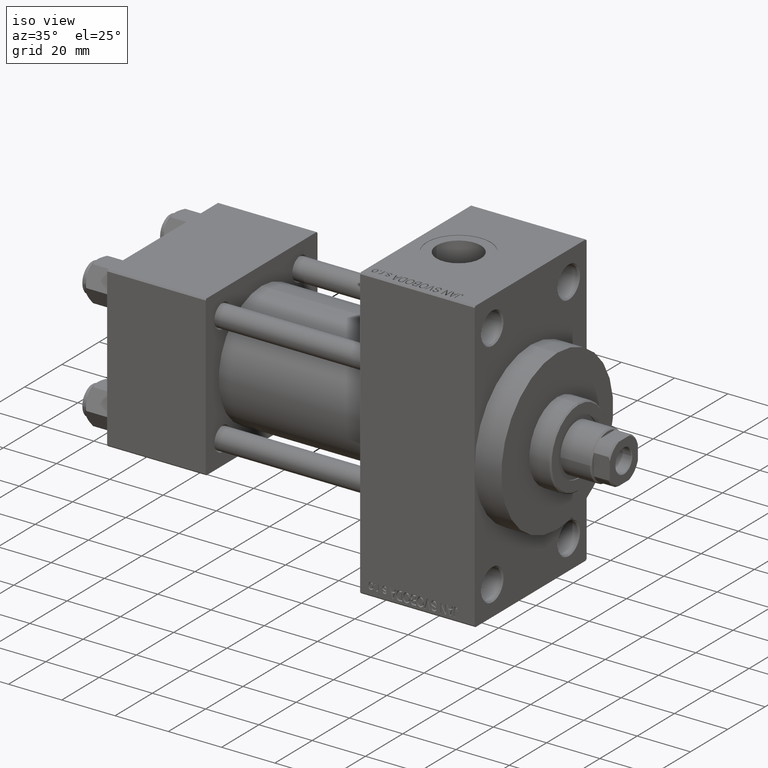
[diagram: clean part render]
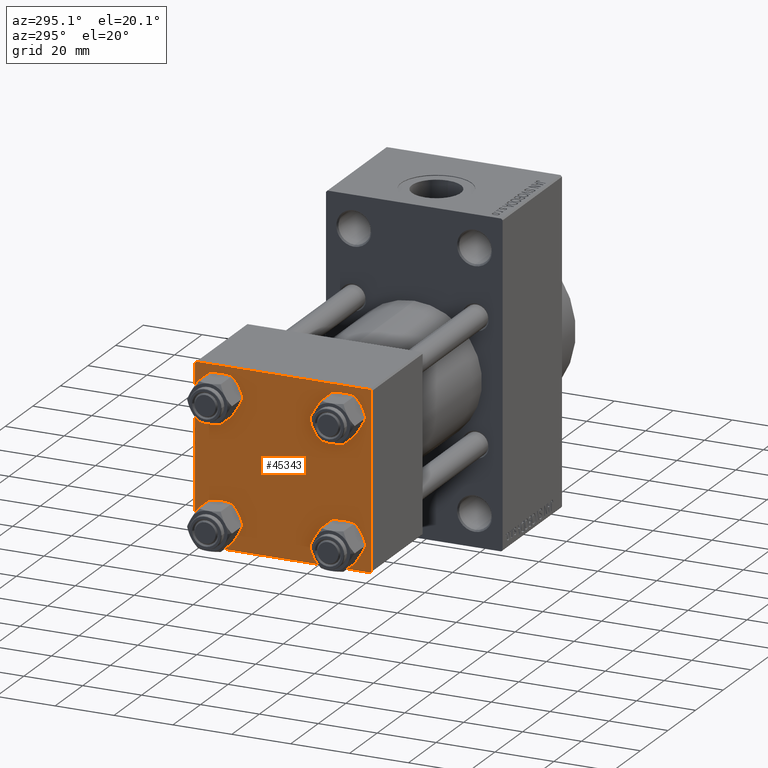
[diagram: tour spotlight — one face highlighted and labeled with its STEP entity id]
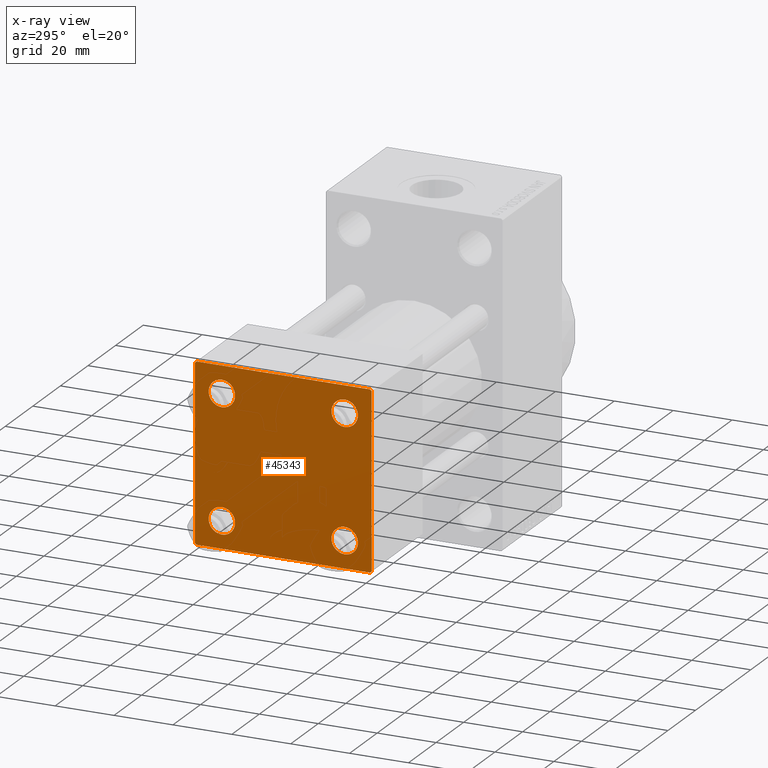
[diagram: x-ray of the same camera — body ghosted, this tour face saturated]
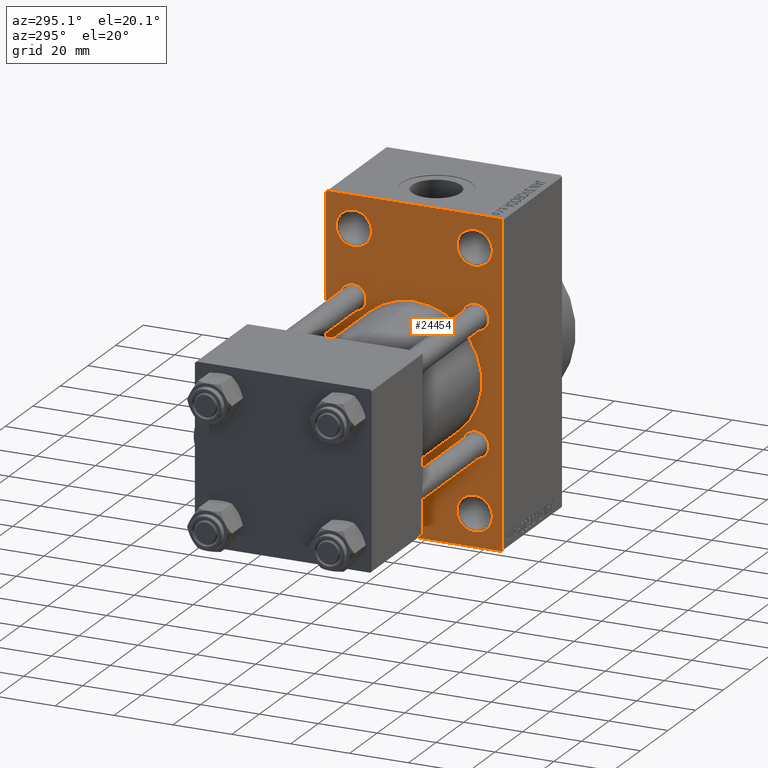
[diagram: tour spotlight — one face highlighted and labeled with its STEP entity id]
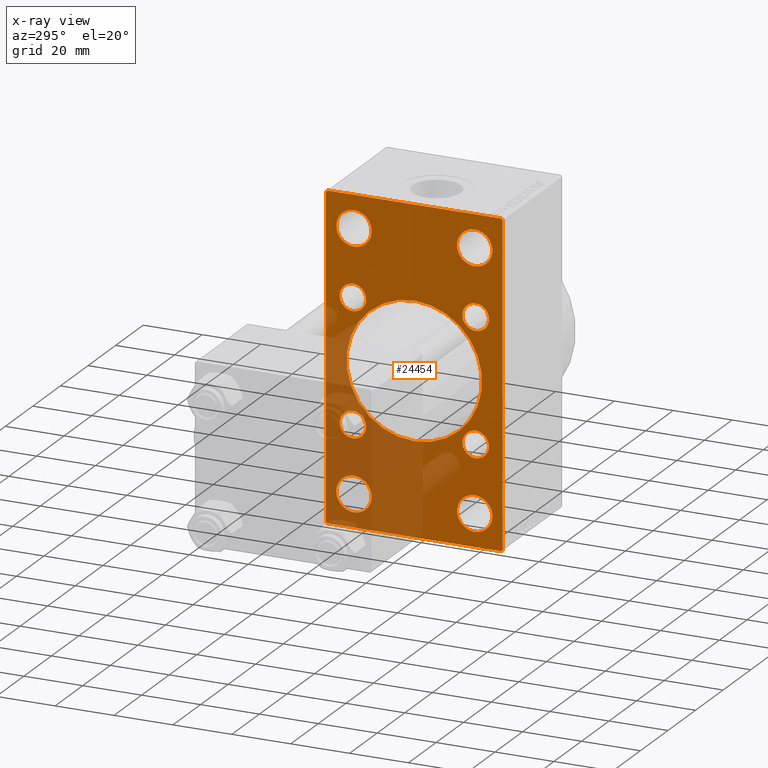
[diagram: x-ray of the same camera — body ghosted, this tour face saturated]
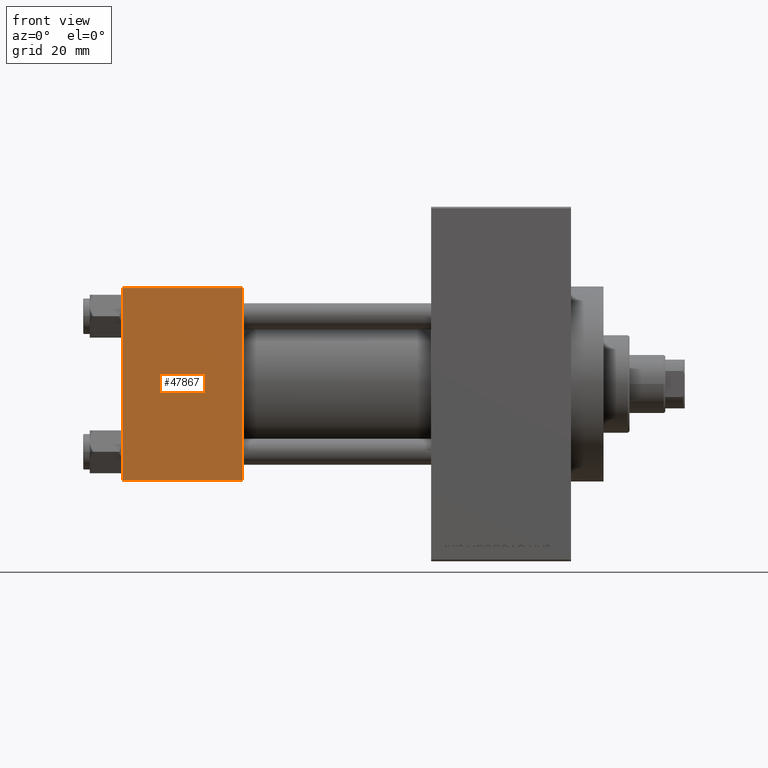
[diagram: tour spotlight — one face highlighted and labeled with its STEP entity id]
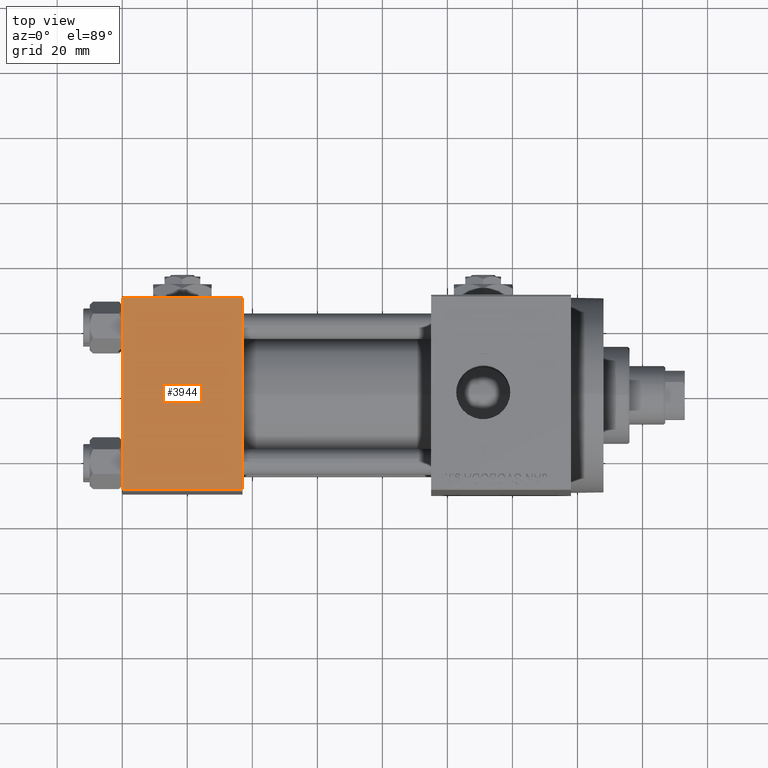
[diagram: tour spotlight — one face highlighted and labeled with its STEP entity id]
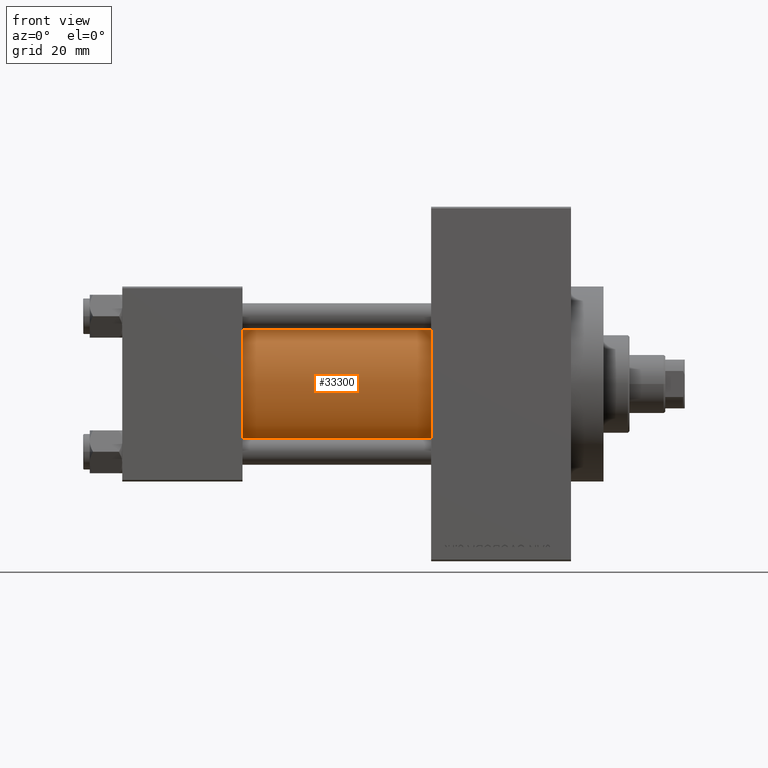
[diagram: tour spotlight — one face highlighted and labeled with its STEP entity id]
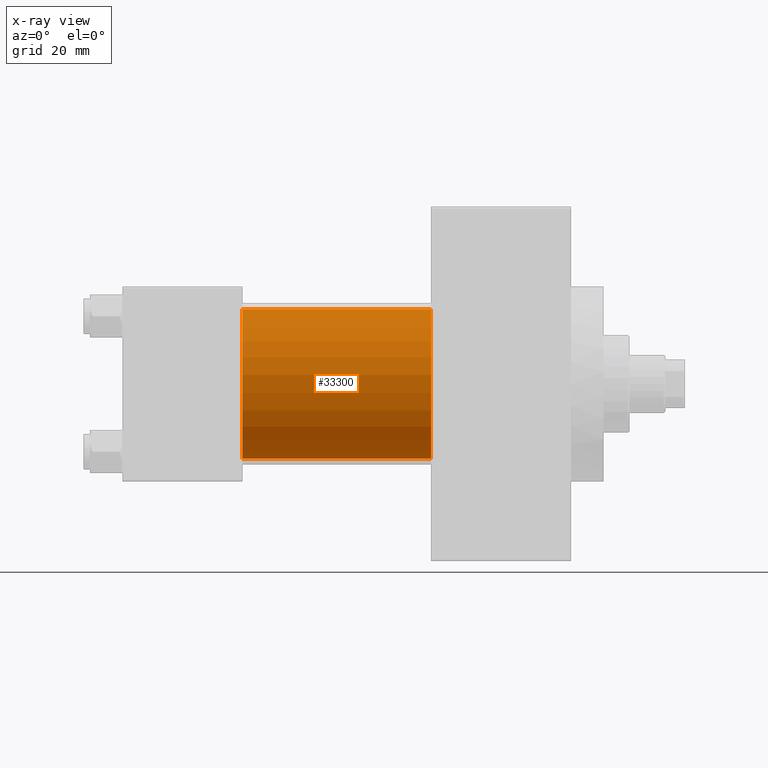
[diagram: x-ray of the same camera — body ghosted, this tour face saturated]
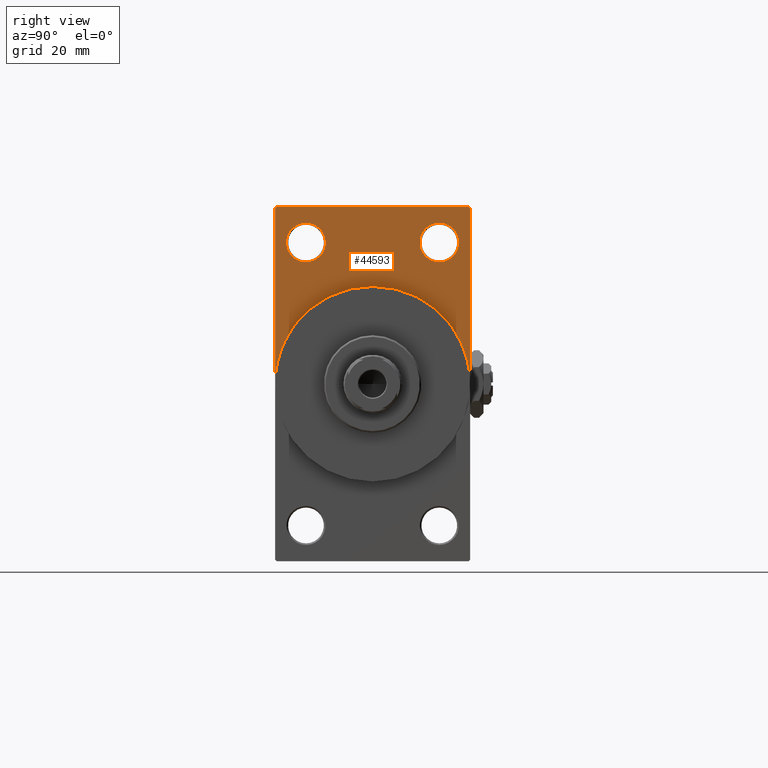
[diagram: tour spotlight — one face highlighted and labeled with its STEP entity id]
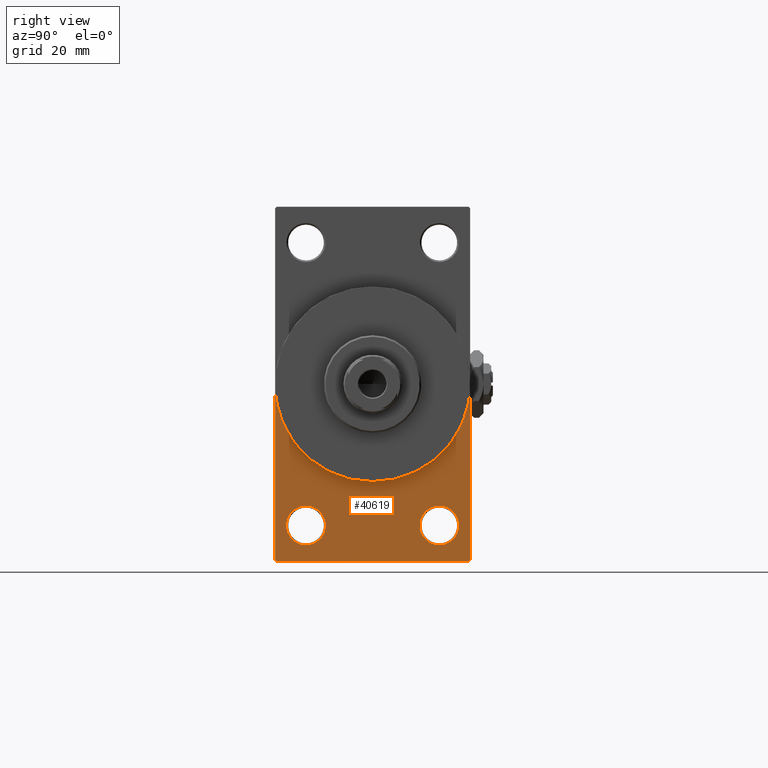
[diagram: tour spotlight — one face highlighted and labeled with its STEP entity id]
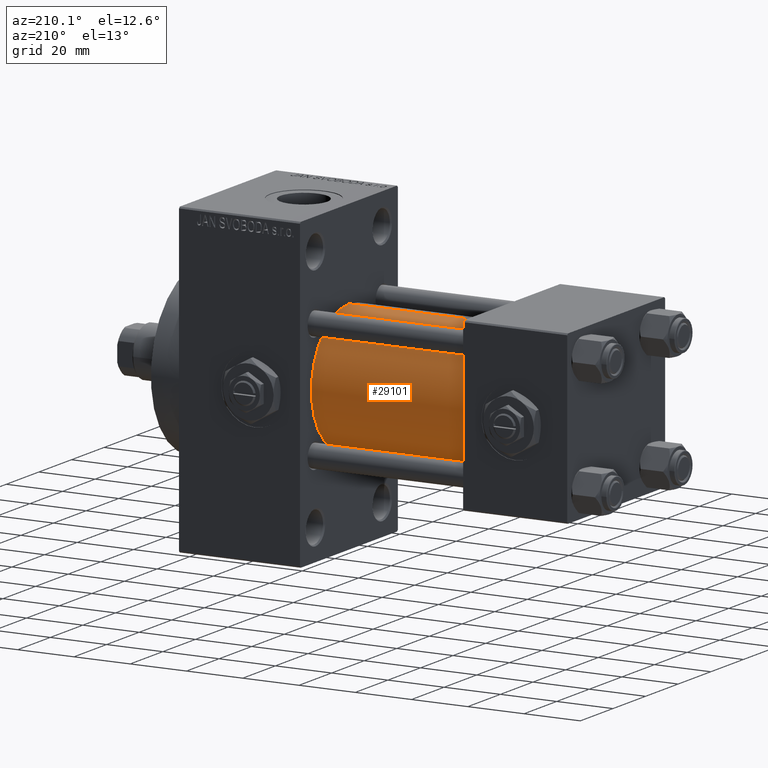
[diagram: tour spotlight — one face highlighted and labeled with its STEP entity id]
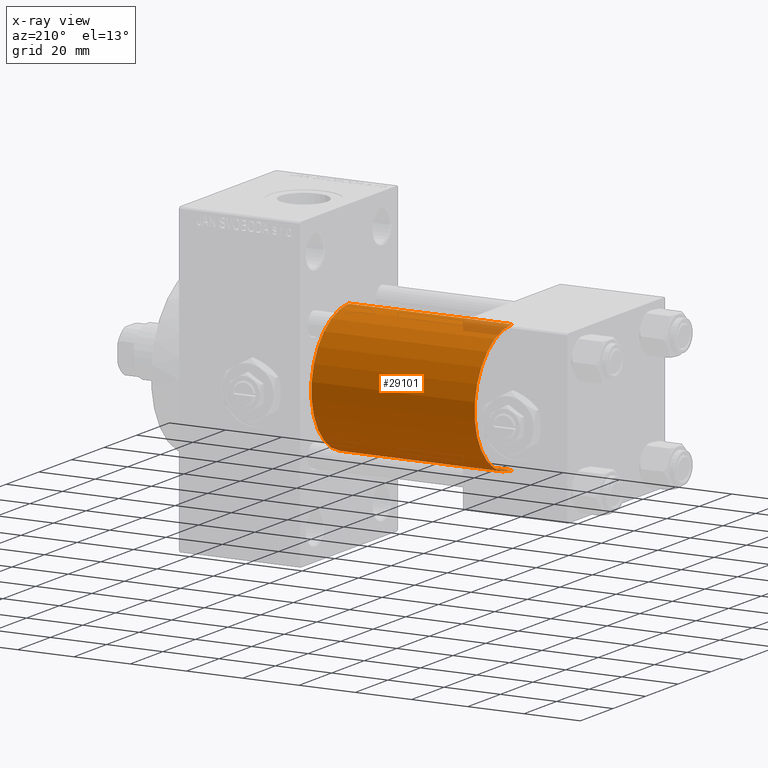
[diagram: x-ray of the same camera — body ghosted, this tour face saturated]
A machine part: a face-by-face anatomy tour. The part has 1205 B-rep faces; the first image is the clean iso view, then the 8 largest visible faces are spotlighted one at a time (largest first), each with its STEP entity span.

Face 1 — auxiliary view, entity #45343. An x-ray twin of the same camera follows (body ghosted, this face saturated) — the face is partly hidden behind the body. In plain terms, the highlighted planar face has unit normal (-1, 0, 0).
Definition (entity closure, byte-faithful):
#46 = VERTEX_POINT ( 'NONE', #35342 ) ;
#1660 = EDGE_LOOP ( 'NONE', ( #11809, #34513 ) ) ;
#3478 = VERTEX_POINT ( 'NONE', #18127 ) ;
#4827 = DIRECTION ( 'NONE',  ( 0.000000000000000000, 0.000000000000000000, 1.000000000000000000 ) ) ;
#5648 = CARTESIAN_POINT ( 'NONE',  ( 0.000000000000000000, 20.84999999999999787, -20.85000000000000142 ) ) ;
#5791 = DIRECTION ( 'NONE',  ( -0.000000000000000000, 0.000000000000000000, 1.000000000000000000 ) ) ;
#6093 = CARTESIAN_POINT ( 'NONE',  ( 0.000000000000000000, -29.75000000000001066, -29.75000000000001066 ) ) ;
#6335 = CARTESIAN_POINT ( 'NONE',  ( 0.000000000000000000, 20.84999999999999787, 16.34999999999998366 ) ) ;
#6636 = CARTESIAN_POINT ( 'NONE',  ( 0.000000000000000000, 29.99999999999999289, 30.00000000000000000 ) ) ;
#6861 = CARTESIAN_POINT ( 'NONE',  ( 0.000000000000000000, 29.99999999999999289, 30.00000000000000000 ) ) ;
#6985 = DIRECTION ( 'NONE',  ( -0.000000000000000000, -0.7071067811865574537, -0.7071067811865376918 ) ) ;
#7071 = AXIS2_PLACEMENT_3D ( 'NONE', #46710, #46465, #4827 ) ;
#7109 = VERTEX_POINT ( 'NONE', #6335 ) ;
#7140 = CARTESIAN_POINT ( 'NONE',  ( 0.000000000000000000, 20.84999999999999787, 20.85000000000000142 ) ) ;
#7199 = DIRECTION ( 'NONE',  ( 1.000000000000000000, -0.000000000000000000, 0.000000000000000000 ) ) ;
#7238 = AXIS2_PLACEMENT_3D ( 'NONE', #13463, #17200, #24706 ) ;
#7718 = LINE ( 'NONE', #19422, #11952 ) ;
#7924 = CARTESIAN_POINT ( 'NONE',  ( 0.000000000000000000, 20.84999999999999787, 25.35000000000001918 ) ) ;
#8291 = CARTESIAN_POINT ( 'NONE',  ( 0.000000000000000000, 29.74999999999999645, 29.74999999999999645 ) ) ;
#8492 = DIRECTION ( 'NONE',  ( 0.000000000000000000, 0.000000000000000000, 1.000000000000000000 ) ) ;
#8653 = VERTEX_POINT ( 'NONE', #37845 ) ;
#10010 = ORIENTED_EDGE ( 'NONE', *, *, #26628, .T. ) ;
#11271 = DIRECTION ( 'NONE',  ( 0.000000000000000000, 0.000000000000000000, -1.000000000000000000 ) ) ;
#11809 = ORIENTED_EDGE ( 'NONE', *, *, #31096, .T. ) ;
#11952 = VECTOR ( 'NONE', #6985, 999.9999999999998863 ) ;
#12362 = ORIENTED_EDGE ( 'NONE', *, *, #41105, .T. ) ;
#12508 = PLANE ( 'NONE',  #37136 ) ;
#12509 = VERTEX_POINT ( 'NONE', #38250 ) ;
#12758 = FACE_BOUND ( 'NONE', #41356, .T. ) ;
#12859 = DIRECTION ( 'NONE',  ( 1.000000000000000000, -0.000000000000000000, 0.000000000000000000 ) ) ;
#13025 = CIRCLE ( 'NONE', #31381, 4.500000000000017764 ) ;
#13145 = VERTEX_POINT ( 'NONE', #18369 ) ;
#13463 = CARTESIAN_POINT ( 'NONE',  ( 0.000000000000000000, -20.84999999999999076, -20.85000000000000497 ) ) ;
#14378 = DIRECTION ( 'NONE',  ( 0.000000000000000000, 0.000000000000000000, 1.000000000000000000 ) ) ;
#14646 = VERTEX_POINT ( 'NONE', #39098 ) ;
#14921 = CARTESIAN_POINT ( 'NONE',  ( 0.000000000000000000, -20.84999999999999076, 20.85000000000000497 ) ) ;
#15088 = VERTEX_POINT ( 'NONE', #28833 ) ;
#15380 = ORIENTED_EDGE ( 'NONE', *, *, #25415, .F. ) ;
#15412 = EDGE_CURVE ( 'NONE', #8653, #43801, #28611, .T. ) ;
#16004 = CARTESIAN_POINT ( 'NONE',  ( 0.000000000000000000, -30.00000000000000000, 29.99999999999999289 ) ) ;
#16254 = FACE_BOUND ( 'NONE', #1660, .T. ) ;
#16515 = CARTESIAN_POINT ( 'NONE',  ( 0.000000000000000000, 20.84999999999999787, 20.85000000000000142 ) ) ;
#16705 = AXIS2_PLACEMENT_3D ( 'NONE', #5648, #12859, #46792 ) ;
#16751 = FACE_BOUND ( 'NONE', #44294, .T. ) ;
#16997 = CARTESIAN_POINT ( 'NONE',  ( 0.000000000000000000, 0.000000000000000000, 0.000000000000000000 ) ) ;
#17200 = DIRECTION ( 'NONE',  ( 1.000000000000000000, -0.000000000000000000, 0.000000000000000000 ) ) ;
#17489 = CARTESIAN_POINT ( 'NONE',  ( 0.000000000000000000, -20.84999999999999076, 25.35000000000002274 ) ) ;
#17805 = AXIS2_PLACEMENT_3D ( 'NONE', #16515, #31988, #43437 ) ;
#18007 = VECTOR ( 'NONE', #24627, 1000.000000000000114 ) ;
#18034 = CARTESIAN_POINT ( 'NONE',  ( 0.000000000000000000, 29.99999999999999289, -30.00000000000000000 ) ) ;
#18081 = ORIENTED_EDGE ( 'NONE', *, *, #42160, .T. ) ;
#18127 = CARTESIAN_POINT ( 'NONE',  ( 0.000000000000000000, 29.49999999999999289, 30.00000000000000000 ) ) ;
#18225 = ORIENTED_EDGE ( 'NONE', *, *, #19194, .T. ) ;
#18315 = DIRECTION ( 'NONE',  ( 0.000000000000000000, 0.000000000000000000, -1.000000000000000000 ) ) ;
#18369 = CARTESIAN_POINT ( 'NONE',  ( 0.000000000000000000, 29.99999999999999289, -29.50000000000000000 ) ) ;
#19020 = EDGE_CURVE ( 'NONE', #43801, #8653, #38215, .T. ) ;
#19120 = AXIS2_PLACEMENT_3D ( 'NONE', #14921, #7199, #26900 ) ;
#19194 = EDGE_CURVE ( 'NONE', #15088, #13145, #41023, .T. ) ;
#19219 = CIRCLE ( 'NONE', #43119, 4.500000000000017764 ) ;
#19264 = LINE ( 'NONE', #8291, #26264 ) ;
#19422 = CARTESIAN_POINT ( 'NONE',  ( 0.000000000000000000, 29.74999999999957723, -29.75000000000040501 ) ) ;
#19992 = EDGE_CURVE ( 'NONE', #13145, #14646, #7718, .T. ) ;
#20513 = DIRECTION ( 'NONE',  ( -1.000000000000000000, 0.000000000000000000, -0.000000000000000000 ) ) ;
#20641 = LINE ( 'NONE', #35346, #18007 ) ;
#20799 = ORIENTED_EDGE ( 'NONE', *, *, #23080, .T. ) ;
#20870 = EDGE_CURVE ( 'NONE', #36820, #44344, #23148, .T. ) ;
#21060 = LINE ( 'NONE', #6093, #21170 ) ;
#21061 = DIRECTION ( 'NONE',  ( 0.000000000000000000, -1.000000000000000000, -1.156482317317871725E-16 ) ) ;
#21170 = VECTOR ( 'NONE', #36513, 1000.000000000000114 ) ;
#21408 = CARTESIAN_POINT ( 'NONE',  ( 0.000000000000000000, -30.00000000000000000, -29.50000000000001776 ) ) ;
#22812 = CARTESIAN_POINT ( 'NONE',  ( 0.000000000000000000, 20.84999999999999787, -16.34999999999998366 ) ) ;
#23080 = EDGE_CURVE ( 'NONE', #45458, #12509, #34257, .T. ) ;
#23148 = CIRCLE ( 'NONE', #7238, 4.500000000000017764 ) ;
#23449 = ORIENTED_EDGE ( 'NONE', *, *, #15412, .T. ) ;
#24627 = DIRECTION ( 'NONE',  ( -0.000000000000000000, 0.7071067811865474617, 0.7071067811865474617 ) ) ;
#24706 = DIRECTION ( 'NONE',  ( 0.000000000000000000, 0.000000000000000000, 1.000000000000000000 ) ) ;
#25012 = CIRCLE ( 'NONE', #17805, 4.500000000000017764 ) ;
#25415 = EDGE_CURVE ( 'NONE', #3478, #46, #40293, .T. ) ;
#25851 = VERTEX_POINT ( 'NONE', #43855 ) ;
#26264 = VECTOR ( 'NONE', #30754, 1000.000000000000114 ) ;
#26463 = ORIENTED_EDGE ( 'NONE', *, *, #31542, .T. ) ;
#26628 = EDGE_CURVE ( 'NONE', #3478, #15088, #19264, .T. ) ;
#26900 = DIRECTION ( 'NONE',  ( 0.000000000000000000, 0.000000000000000000, 1.000000000000000000 ) ) ;
#27451 = ORIENTED_EDGE ( 'NONE', *, *, #19992, .T. ) ;
#28524 = EDGE_CURVE ( 'NONE', #12509, #45458, #19219, .T. ) ;
#28611 = CIRCLE ( 'NONE', #7071, 4.500000000000017764 ) ;
#28743 = DIRECTION ( 'NONE',  ( 0.000000000000000000, 0.000000000000000000, 1.000000000000000000 ) ) ;
#28833 = CARTESIAN_POINT ( 'NONE',  ( 0.000000000000000000, 29.99999999999999289, 29.50000000000000000 ) ) ;
#29174 = CARTESIAN_POINT ( 'NONE',  ( 0.000000000000000000, -20.84999999999999076, -16.34999999999998721 ) ) ;
#30389 = VECTOR ( 'NONE', #41027, 1000.000000000000000 ) ;
#30754 = DIRECTION ( 'NONE',  ( 0.000000000000000000, 0.7071067811865474617, -0.7071067811865474617 ) ) ;
#31096 = EDGE_CURVE ( 'NONE', #45738, #7109, #48042, .T. ) ;
#31381 = AXIS2_PLACEMENT_3D ( 'NONE', #36941, #33441, #28743 ) ;
#31542 = EDGE_CURVE ( 'NONE', #14646, #25851, #43990, .T. ) ;
#31948 = CARTESIAN_POINT ( 'NONE',  ( 0.000000000000000000, -20.84999999999999076, 20.85000000000000497 ) ) ;
#31988 = DIRECTION ( 'NONE',  ( 1.000000000000000000, -0.000000000000000000, 0.000000000000000000 ) ) ;
#32110 = AXIS2_PLACEMENT_3D ( 'NONE', #7140, #48530, #14378 ) ;
#32236 = FACE_OUTER_BOUND ( 'NONE', #33801, .T. ) ;
#33223 = VECTOR ( 'NONE', #11271, 1000.000000000000000 ) ;
#33399 = ORIENTED_EDGE ( 'NONE', *, *, #44150, .F. ) ;
#33441 = DIRECTION ( 'NONE',  ( 1.000000000000000000, -0.000000000000000000, 0.000000000000000000 ) ) ;
#33801 = EDGE_LOOP ( 'NONE', ( #18225, #27451, #26463, #12362, #33399, #18081, #15380, #10010 ) ) ;
#34257 = CIRCLE ( 'NONE', #19120, 4.500000000000017764 ) ;
#34513 = ORIENTED_EDGE ( 'NONE', *, *, #37235, .T. ) ;
#35342 = CARTESIAN_POINT ( 'NONE',  ( 0.000000000000000000, -29.49999999999998579, 29.99999999999999289 ) ) ;
#35346 = CARTESIAN_POINT ( 'NONE',  ( -0.000000000000000000, -29.74999999999999645, 29.74999999999999645 ) ) ;
#35467 = FACE_BOUND ( 'NONE', #44183, .T. ) ;
#36513 = DIRECTION ( 'NONE',  ( 0.000000000000000000, -0.7071067811865474617, 0.7071067811865474617 ) ) ;
#36626 = EDGE_CURVE ( 'NONE', #44344, #36820, #13025, .T. ) ;
#36820 = VERTEX_POINT ( 'NONE', #29174 ) ;
#36941 = CARTESIAN_POINT ( 'NONE',  ( 0.000000000000000000, -20.84999999999999076, -20.85000000000000497 ) ) ;
#37136 = AXIS2_PLACEMENT_3D ( 'NONE', #16997, #20513, #5791 ) ;
#37235 = EDGE_CURVE ( 'NONE', #7109, #45738, #25012, .T. ) ;
#37564 = VECTOR ( 'NONE', #21061, 1000.000000000000000 ) ;
#37845 = CARTESIAN_POINT ( 'NONE',  ( 0.000000000000000000, 20.84999999999999787, -25.35000000000001918 ) ) ;
#38215 = CIRCLE ( 'NONE', #16705, 4.500000000000017764 ) ;
#38250 = CARTESIAN_POINT ( 'NONE',  ( 0.000000000000000000, -20.84999999999999076, 16.34999999999998721 ) ) ;
#38948 = CARTESIAN_POINT ( 'NONE',  ( 0.000000000000000000, -20.84999999999999076, -25.35000000000002274 ) ) ;
#39098 = CARTESIAN_POINT ( 'NONE',  ( 0.000000000000000000, 29.49999999999997868, -30.00000000000000000 ) ) ;
#39408 = DIRECTION ( 'NONE',  ( 1.000000000000000000, -0.000000000000000000, 0.000000000000000000 ) ) ;
#39449 = CARTESIAN_POINT ( 'NONE',  ( 0.000000000000000000, -30.00000000000000000, 29.49999999999999289 ) ) ;
#40293 = LINE ( 'NONE', #6636, #30389 ) ;
#41023 = LINE ( 'NONE', #6861, #43844 ) ;
#41027 = DIRECTION ( 'NONE',  ( 0.000000000000000000, -1.000000000000000000, -1.156482317317871725E-16 ) ) ;
#41105 = EDGE_CURVE ( 'NONE', #25851, #46816, #21060, .T. ) ;
#41356 = EDGE_LOOP ( 'NONE', ( #43817, #42890 ) ) ;
#42160 = EDGE_CURVE ( 'NONE', #42312, #46, #20641, .T. ) ;
#42312 = VERTEX_POINT ( 'NONE', #39449 ) ;
#42695 = ORIENTED_EDGE ( 'NONE', *, *, #28524, .T. ) ;
#42890 = ORIENTED_EDGE ( 'NONE', *, *, #36626, .T. ) ;
#43119 = AXIS2_PLACEMENT_3D ( 'NONE', #31948, #39408, #8492 ) ;
#43437 = DIRECTION ( 'NONE',  ( 0.000000000000000000, 0.000000000000000000, 1.000000000000000000 ) ) ;
#43801 = VERTEX_POINT ( 'NONE', #22812 ) ;
#43817 = ORIENTED_EDGE ( 'NONE', *, *, #20870, .T. ) ;
#43844 = VECTOR ( 'NONE', #18315, 1000.000000000000000 ) ;
#43855 = CARTESIAN_POINT ( 'NONE',  ( 0.000000000000000000, -29.50000000000000000, -30.00000000000000711 ) ) ;
#43990 = LINE ( 'NONE', #18034, #37564 ) ;
#44150 = EDGE_CURVE ( 'NONE', #42312, #46816, #49177, .T. ) ;
#44183 = EDGE_LOOP ( 'NONE', ( #20799, #42695 ) ) ;
#44294 = EDGE_LOOP ( 'NONE', ( #46055, #23449 ) ) ;
#44344 = VERTEX_POINT ( 'NONE', #38948 ) ;
#45343 = ADVANCED_FACE ( 'NONE', ( #35467, #12758, #16751, #16254, #32236 ), #12508, .T. ) ;
#45458 = VERTEX_POINT ( 'NONE', #17489 ) ;
#45738 = VERTEX_POINT ( 'NONE', #7924 ) ;
#46055 = ORIENTED_EDGE ( 'NONE', *, *, #19020, .T. ) ;
#46465 = DIRECTION ( 'NONE',  ( 1.000000000000000000, -0.000000000000000000, 0.000000000000000000 ) ) ;
#46710 = CARTESIAN_POINT ( 'NONE',  ( 0.000000000000000000, 20.84999999999999787, -20.85000000000000142 ) ) ;
#46792 = DIRECTION ( 'NONE',  ( 0.000000000000000000, 0.000000000000000000, 1.000000000000000000 ) ) ;
#46816 = VERTEX_POINT ( 'NONE', #21408 ) ;
#48042 = CIRCLE ( 'NONE', #32110, 4.500000000000017764 ) ;
#48530 = DIRECTION ( 'NONE',  ( 1.000000000000000000, -0.000000000000000000, 0.000000000000000000 ) ) ;
#49177 = LINE ( 'NONE', #16004, #33223 ) ;

Face 2 — auxiliary view, entity #24454. An x-ray twin of the same camera follows (body ghosted, this face saturated) — the face is partly hidden behind the body. In plain terms, the highlighted planar face has unit normal (-1, 0, 0).
Definition (entity closure, byte-faithful):
#138 = EDGE_CURVE ( 'NONE', #25059, #30032, #44299, .T. ) ;
#255 = AXIS2_PLACEMENT_3D ( 'NONE', #24735, #36690, #28984 ) ;
#455 = VERTEX_POINT ( 'NONE', #20073 ) ;
#814 = ORIENTED_EDGE ( 'NONE', *, *, #33960, .T. ) ;
#861 = DIRECTION ( 'NONE',  ( 0.000000000000000000, 0.000000000000000000, 1.000000000000000000 ) ) ;
#896 = FACE_BOUND ( 'NONE', #46547, .T. ) ;
#1151 = PLANE ( 'NONE',  #24810 ) ;
#1335 = DIRECTION ( 'NONE',  ( 0.000000000000000000, 0.000000000000000000, 1.000000000000000000 ) ) ;
#1445 = CARTESIAN_POINT ( 'NONE',  ( 95.00000000000000000, 20.50000000000000000, 43.50000000000000000 ) ) ;
#1474 = CARTESIAN_POINT ( 'NONE',  ( 95.00000000000000000, 20.84999999999999787, 25.35000000000000853 ) ) ;
#1637 = EDGE_CURVE ( 'NONE', #20546, #5004, #37756, .T. ) ;
#1648 = FACE_BOUND ( 'NONE', #36447, .T. ) ;
#1815 = ORIENTED_EDGE ( 'NONE', *, *, #138, .T. ) ;
#2301 = VERTEX_POINT ( 'NONE', #45928 ) ;
#2527 = VERTEX_POINT ( 'NONE', #3481 ) ;
#2663 = VERTEX_POINT ( 'NONE', #1474 ) ;
#2674 = EDGE_CURVE ( 'NONE', #37590, #26765, #12679, .T. ) ;
#2815 = DIRECTION ( 'NONE',  ( -0.000000000000000000, -0.7071067811865474617, -0.7071067811865474617 ) ) ;
#2818 = CARTESIAN_POINT ( 'NONE',  ( 95.00000000000000000, 20.84999999999999787, 16.34999999999999432 ) ) ;
#3144 = ORIENTED_EDGE ( 'NONE', *, *, #1637, .T. ) ;
#3234 = ORIENTED_EDGE ( 'NONE', *, *, #44479, .T. ) ;
#3235 = DIRECTION ( 'NONE',  ( 0.000000000000000000, 0.000000000000000000, 1.000000000000000000 ) ) ;
#3265 = EDGE_LOOP ( 'NONE', ( #4224, #3429 ) ) ;
#3361 = CARTESIAN_POINT ( 'NONE',  ( 95.00000000000000000, 20.50000000000000000, -37.50000000000009948 ) ) ;
#3380 = ORIENTED_EDGE ( 'NONE', *, *, #42851, .T. ) ;
#3400 = CARTESIAN_POINT ( 'NONE',  ( 95.00000000000000000, 29.99999999999999645, 53.99999999999999289 ) ) ;
#3429 = ORIENTED_EDGE ( 'NONE', *, *, #16669, .T. ) ;
#3481 = CARTESIAN_POINT ( 'NONE',  ( 95.00000000000000000, 20.50000000000000000, 49.49999999999989342 ) ) ;
#3487 = DIRECTION ( 'NONE',  ( 1.000000000000000000, -0.000000000000000000, 0.000000000000000000 ) ) ;
#3488 = EDGE_CURVE ( 'NONE', #46822, #19210, #35457, .T. ) ;
#3582 = AXIS2_PLACEMENT_3D ( 'NONE', #48065, #22360, #44574 ) ;
#3799 = DIRECTION ( 'NONE',  ( 1.000000000000000000, -0.000000000000000000, 0.000000000000000000 ) ) ;
#4072 = CIRCLE ( 'NONE', #33555, 4.500000000000007105 ) ;
#4117 = CARTESIAN_POINT ( 'NONE',  ( 95.00000000000000000, 29.99999999999999645, -53.99999999999999289 ) ) ;
#4224 = ORIENTED_EDGE ( 'NONE', *, *, #33216, .T. ) ;
#4611 = CARTESIAN_POINT ( 'NONE',  ( 95.00000000000000000, -20.84999999999999076, -20.85000000000000497 ) ) ;
#4640 = EDGE_CURVE ( 'NONE', #10224, #17162, #35488, .T. ) ;
#4865 = CIRCLE ( 'NONE', #11212, 4.500000000000007105 ) ;
#5004 = VERTEX_POINT ( 'NONE', #17948 ) ;
#5796 = CIRCLE ( 'NONE', #6581, 5.999999999999894307 ) ;
#5886 = EDGE_CURVE ( 'NONE', #27336, #455, #21992, .T. ) ;
#5916 = DIRECTION ( 'NONE',  ( 0.000000000000000000, -1.000000000000000000, -1.156482317317871478E-16 ) ) ;
#6258 = CARTESIAN_POINT ( 'NONE',  ( 95.00000000000000000, 20.84999999999999787, 20.85000000000000142 ) ) ;
#6307 = CARTESIAN_POINT ( 'NONE',  ( 95.00000000000000000, -2.602085213965210642E-15, 0.000000000000000000 ) ) ;
#6321 = LINE ( 'NONE', #44697, #40470 ) ;
#6581 = AXIS2_PLACEMENT_3D ( 'NONE', #21928, #22170, #25434 ) ;
#6677 = EDGE_LOOP ( 'NONE', ( #28419, #3234 ) ) ;
#6784 = DIRECTION ( 'NONE',  ( 0.000000000000000000, 0.000000000000000000, 1.000000000000000000 ) ) ;
#6840 = AXIS2_PLACEMENT_3D ( 'NONE', #16744, #27490, #23747 ) ;
#6979 = DIRECTION ( 'NONE',  ( 0.000000000000000000, 0.000000000000000000, 1.000000000000000000 ) ) ;
#7160 = EDGE_CURVE ( 'NONE', #5004, #20546, #42742, .T. ) ;
#7468 = ORIENTED_EDGE ( 'NONE', *, *, #43025, .T. ) ;
#7596 = DIRECTION ( 'NONE',  ( 0.000000000000000000, 0.000000000000000000, 1.000000000000000000 ) ) ;
#7801 = VECTOR ( 'NONE', #11405, 1000.000000000000114 ) ;
#7891 = EDGE_CURVE ( 'NONE', #14152, #2301, #45951, .T. ) ;
#8204 = CARTESIAN_POINT ( 'NONE',  ( 95.00000000000000000, -30.00000000000000000, 54.50000000000000000 ) ) ;
#8604 = CARTESIAN_POINT ( 'NONE',  ( 95.00000000000000000, -30.00000000000000000, 53.99999999999997158 ) ) ;
#8703 = DIRECTION ( 'NONE',  ( 0.000000000000000000, 0.000000000000000000, 1.000000000000000000 ) ) ;
#8946 = DIRECTION ( 'NONE',  ( 0.000000000000000000, 0.000000000000000000, -1.000000000000000000 ) ) ;
#9019 = CIRCLE ( 'NONE', #255, 4.500000000000007105 ) ;
#9206 = AXIS2_PLACEMENT_3D ( 'NONE', #20296, #35502, #1335 ) ;
#9241 = AXIS2_PLACEMENT_3D ( 'NONE', #22930, #3487, #10707 ) ;
#9373 = FACE_BOUND ( 'NONE', #32429, .T. ) ;
#10020 = ORIENTED_EDGE ( 'NONE', *, *, #5886, .T. ) ;
#10224 = VERTEX_POINT ( 'NONE', #19531 ) ;
#10696 = CARTESIAN_POINT ( 'NONE',  ( 95.00000000000000000, 20.84999999999999787, -20.85000000000000142 ) ) ;
#10707 = DIRECTION ( 'NONE',  ( 0.000000000000000000, 0.000000000000000000, 1.000000000000000000 ) ) ;
#10912 = VECTOR ( 'NONE', #29154, 1000.000000000000000 ) ;
#10990 = DIRECTION ( 'NONE',  ( 1.000000000000000000, -0.000000000000000000, 0.000000000000000000 ) ) ;
#11104 = EDGE_LOOP ( 'NONE', ( #30188, #10020 ) ) ;
#11212 = AXIS2_PLACEMENT_3D ( 'NONE', #45664, #10990, #6784 ) ;
#11405 = DIRECTION ( 'NONE',  ( -0.000000000000000000, 0.7071067811865451302, 0.7071067811865500152 ) ) ;
#11559 = CARTESIAN_POINT ( 'NONE',  ( 95.00000000000000000, 29.99999999999999645, 54.49999999999999289 ) ) ;
#11651 = LINE ( 'NONE', #22889, #7801 ) ;
#11720 = CARTESIAN_POINT ( 'NONE',  ( 95.00000000000000000, -29.49999999999997513, 54.50000000000000000 ) ) ;
#12111 = FACE_BOUND ( 'NONE', #15715, .T. ) ;
#12136 = EDGE_CURVE ( 'NONE', #17162, #10224, #18875, .T. ) ;
#12553 = CARTESIAN_POINT ( 'NONE',  ( 95.00000000000000000, 20.84999999999999787, -25.35000000000000853 ) ) ;
#12679 = LINE ( 'NONE', #8204, #42562 ) ;
#13036 = EDGE_LOOP ( 'NONE', ( #35975, #47259 ) ) ;
#13749 = EDGE_CURVE ( 'NONE', #36136, #25059, #6321, .T. ) ;
#14152 = VERTEX_POINT ( 'NONE', #29347 ) ;
#14260 = ORIENTED_EDGE ( 'NONE', *, *, #7891, .T. ) ;
#14889 = ORIENTED_EDGE ( 'NONE', *, *, #7160, .T. ) ;
#15658 = VERTEX_POINT ( 'NONE', #17701 ) ;
#15681 = DIRECTION ( 'NONE',  ( 1.000000000000000000, -0.000000000000000000, 0.000000000000000000 ) ) ;
#15715 = EDGE_LOOP ( 'NONE', ( #3380, #29056 ) ) ;
#16669 = EDGE_CURVE ( 'NONE', #15658, #2527, #29419, .T. ) ;
#16744 = CARTESIAN_POINT ( 'NONE',  ( 95.00000000000000000, 20.84999999999999787, -20.85000000000000142 ) ) ;
#17162 = VERTEX_POINT ( 'NONE', #36749 ) ;
#17701 = CARTESIAN_POINT ( 'NONE',  ( 95.00000000000000000, 20.50000000000000000, 37.50000000000009948 ) ) ;
#17948 = CARTESIAN_POINT ( 'NONE',  ( 95.00000000000000000, -20.84999999999999076, 25.35000000000001208 ) ) ;
#18209 = VERTEX_POINT ( 'NONE', #43781 ) ;
#18298 = CARTESIAN_POINT ( 'NONE',  ( 95.00000000000000000, -20.84999999999999076, 16.34999999999999787 ) ) ;
#18517 = ORIENTED_EDGE ( 'NONE', *, *, #20691, .T. ) ;
#18875 = CIRCLE ( 'NONE', #36410, 5.999999999999894307 ) ;
#19111 = CARTESIAN_POINT ( 'NONE',  ( 95.00000000000000000, -20.84999999999999076, 20.85000000000000497 ) ) ;
#19136 = CARTESIAN_POINT ( 'NONE',  ( 95.00000000000000000, -29.50000000000000355, -54.50000000000000000 ) ) ;
#19210 = VERTEX_POINT ( 'NONE', #3361 ) ;
#19299 = EDGE_CURVE ( 'NONE', #20209, #36136, #46233, .T. ) ;
#19351 = DIRECTION ( 'NONE',  ( 1.000000000000000000, -0.000000000000000000, 0.000000000000000000 ) ) ;
#19390 = VERTEX_POINT ( 'NONE', #2818 ) ;
#19531 = CARTESIAN_POINT ( 'NONE',  ( 95.00000000000000000, -20.50000000000000000, -49.49999999999989342 ) ) ;
#19856 = FACE_BOUND ( 'NONE', #6677, .T. ) ;
#20054 = LINE ( 'NONE', #43731, #22821 ) ;
#20073 = CARTESIAN_POINT ( 'NONE',  ( 95.00000000000000000, -20.50000000000000000, 49.49999999999989342 ) ) ;
#20149 = DIRECTION ( 'NONE',  ( 0.000000000000000000, 0.000000000000000000, 1.000000000000000000 ) ) ;
#20209 = VERTEX_POINT ( 'NONE', #3400 ) ;
#20296 = CARTESIAN_POINT ( 'NONE',  ( 95.00000000000000000, -20.50000000000000000, -43.50000000000000000 ) ) ;
#20358 = DIRECTION ( 'NONE',  ( -1.000000000000000000, 0.000000000000000000, -0.000000000000000000 ) ) ;
#20546 = VERTEX_POINT ( 'NONE', #18298 ) ;
#20691 = EDGE_CURVE ( 'NONE', #18209, #28694, #24770, .T. ) ;
#20750 = EDGE_CURVE ( 'NONE', #19390, #2663, #4865, .T. ) ;
#20820 = CIRCLE ( 'NONE', #45506, 4.500000000000007105 ) ;
#21048 = DIRECTION ( 'NONE',  ( 0.000000000000000000, -0.7071067811865352493, 0.7071067811865597852 ) ) ;
#21265 = CARTESIAN_POINT ( 'NONE',  ( 95.00000000000000000, -20.50000000000000000, 37.50000000000009948 ) ) ;
#21469 = DIRECTION ( 'NONE',  ( 1.000000000000000000, -0.000000000000000000, 0.000000000000000000 ) ) ;
#21700 = AXIS2_PLACEMENT_3D ( 'NONE', #1445, #38842, #20149 ) ;
#21804 = EDGE_CURVE ( 'NONE', #45320, #43055, #4072, .T. ) ;
#21928 = CARTESIAN_POINT ( 'NONE',  ( 95.00000000000000000, -20.50000000000000000, 43.50000000000000000 ) ) ;
#21992 = CIRCLE ( 'NONE', #9241, 5.999999999999894307 ) ;
#22170 = DIRECTION ( 'NONE',  ( 1.000000000000000000, -0.000000000000000000, 0.000000000000000000 ) ) ;
#22360 = DIRECTION ( 'NONE',  ( 1.000000000000000000, -0.000000000000000000, 0.000000000000000000 ) ) ;
#22456 = ORIENTED_EDGE ( 'NONE', *, *, #20750, .T. ) ;
#22821 = VECTOR ( 'NONE', #21048, 1000.000000000000000 ) ;
#22889 = CARTESIAN_POINT ( 'NONE',  ( 95.00000000000000000, -42.00000000000008527, 41.99999999999979394 ) ) ;
#22930 = CARTESIAN_POINT ( 'NONE',  ( 95.00000000000000000, -20.50000000000000000, 43.50000000000000000 ) ) ;
#23672 = CARTESIAN_POINT ( 'NONE',  ( 95.00000000000000000, 20.50000000000000000, 43.50000000000000000 ) ) ;
#23747 = DIRECTION ( 'NONE',  ( 0.000000000000000000, 0.000000000000000000, 1.000000000000000000 ) ) ;
#23850 = CARTESIAN_POINT ( 'NONE',  ( 95.00000000000000000, 0.000000000000000000, 0.000000000000000000 ) ) ;
#23979 = AXIS2_PLACEMENT_3D ( 'NONE', #6307, #28267, #44447 ) ;
#24009 = LINE ( 'NONE', #43698, #45573 ) ;
#24454 = ADVANCED_FACE ( 'NONE', ( #27848, #35066, #12111, #31084, #35814, #9373, #19856, #1648, #896, #43285 ), #1151, .T. ) ;
#24639 = AXIS2_PLACEMENT_3D ( 'NONE', #23672, #15681, #8703 ) ;
#24648 = CARTESIAN_POINT ( 'NONE',  ( 95.00000000000000000, -20.50000000000000000, -43.50000000000000000 ) ) ;
#24735 = CARTESIAN_POINT ( 'NONE',  ( 95.00000000000000000, -20.84999999999999076, -20.85000000000000497 ) ) ;
#24743 = EDGE_CURVE ( 'NONE', #2663, #19390, #20820, .T. ) ;
#24770 = CIRCLE ( 'NONE', #23979, 23.00000000000000000 ) ;
#24810 = AXIS2_PLACEMENT_3D ( 'NONE', #23850, #20358, #27348 ) ;
#24968 = VECTOR ( 'NONE', #5916, 1000.000000000000000 ) ;
#25059 = VERTEX_POINT ( 'NONE', #36615 ) ;
#25248 = AXIS2_PLACEMENT_3D ( 'NONE', #4611, #35029, #861 ) ;
#25434 = DIRECTION ( 'NONE',  ( 0.000000000000000000, 0.000000000000000000, 1.000000000000000000 ) ) ;
#25937 = DIRECTION ( 'NONE',  ( 1.000000000000000000, -0.000000000000000000, 0.000000000000000000 ) ) ;
#25960 = CARTESIAN_POINT ( 'NONE',  ( 95.00000000000000000, -2.602085213965210642E-15, 0.000000000000000000 ) ) ;
#25998 = AXIS2_PLACEMENT_3D ( 'NONE', #45498, #41756, #7596 ) ;
#26502 = DIRECTION ( 'NONE',  ( 0.000000000000000000, 0.000000000000000000, 1.000000000000000000 ) ) ;
#26765 = VERTEX_POINT ( 'NONE', #48643 ) ;
#27309 = ORIENTED_EDGE ( 'NONE', *, *, #2674, .F. ) ;
#27336 = VERTEX_POINT ( 'NONE', #21265 ) ;
#27348 = DIRECTION ( 'NONE',  ( -0.000000000000000000, 0.000000000000000000, 1.000000000000000000 ) ) ;
#27490 = DIRECTION ( 'NONE',  ( 1.000000000000000000, -0.000000000000000000, 0.000000000000000000 ) ) ;
#27848 = FACE_BOUND ( 'NONE', #11104, .T. ) ;
#28071 = ORIENTED_EDGE ( 'NONE', *, *, #13749, .T. ) ;
#28267 = DIRECTION ( 'NONE',  ( 1.000000000000000000, 0.000000000000000000, 0.000000000000000000 ) ) ;
#28419 = ORIENTED_EDGE ( 'NONE', *, *, #21804, .T. ) ;
#28425 = AXIS2_PLACEMENT_3D ( 'NONE', #31229, #3799, #26502 ) ;
#28694 = VERTEX_POINT ( 'NONE', #28956 ) ;
#28956 = CARTESIAN_POINT ( 'NONE',  ( 95.00000000000000000, -2.602085213965210642E-15, 23.00000000000000000 ) ) ;
#28984 = DIRECTION ( 'NONE',  ( 0.000000000000000000, 0.000000000000000000, 1.000000000000000000 ) ) ;
#29056 = ORIENTED_EDGE ( 'NONE', *, *, #3488, .T. ) ;
#29154 = DIRECTION ( 'NONE',  ( 0.000000000000000000, -1.000000000000000000, 1.156482317317871478E-16 ) ) ;
#29347 = CARTESIAN_POINT ( 'NONE',  ( 95.00000000000000000, -20.84999999999999076, -25.35000000000001208 ) ) ;
#29419 = CIRCLE ( 'NONE', #24639, 5.999999999999894307 ) ;
#29648 = VERTEX_POINT ( 'NONE', #43686 ) ;
#29809 = AXIS2_PLACEMENT_3D ( 'NONE', #19111, #19351, #34578 ) ;
#30022 = ORIENTED_EDGE ( 'NONE', *, *, #24743, .T. ) ;
#30032 = VERTEX_POINT ( 'NONE', #19136 ) ;
#30188 = ORIENTED_EDGE ( 'NONE', *, *, #30698, .T. ) ;
#30698 = EDGE_CURVE ( 'NONE', #455, #27336, #5796, .T. ) ;
#31084 = FACE_BOUND ( 'NONE', #3265, .T. ) ;
#31229 = CARTESIAN_POINT ( 'NONE',  ( 95.00000000000000000, -20.84999999999999076, 20.85000000000000497 ) ) ;
#32314 = AXIS2_PLACEMENT_3D ( 'NONE', #25960, #33921, #45147 ) ;
#32376 = DIRECTION ( 'NONE',  ( 0.000000000000000000, 0.000000000000000000, 1.000000000000000000 ) ) ;
#32429 = EDGE_LOOP ( 'NONE', ( #30022, #22456 ) ) ;
#33216 = EDGE_CURVE ( 'NONE', #2527, #15658, #38416, .T. ) ;
#33555 = AXIS2_PLACEMENT_3D ( 'NONE', #10696, #25937, #6979 ) ;
#33921 = DIRECTION ( 'NONE',  ( 1.000000000000000000, 0.000000000000000000, 0.000000000000000000 ) ) ;
#33960 = EDGE_CURVE ( 'NONE', #29648, #20209, #24009, .T. ) ;
#34006 = ORIENTED_EDGE ( 'NONE', *, *, #41543, .T. ) ;
#34236 = VERTEX_POINT ( 'NONE', #11720 ) ;
#34408 = ORIENTED_EDGE ( 'NONE', *, *, #35531, .T. ) ;
#34578 = DIRECTION ( 'NONE',  ( 0.000000000000000000, 0.000000000000000000, 1.000000000000000000 ) ) ;
#35029 = DIRECTION ( 'NONE',  ( 1.000000000000000000, -0.000000000000000000, 0.000000000000000000 ) ) ;
#35066 = FACE_BOUND ( 'NONE', #13036, .T. ) ;
#35457 = CIRCLE ( 'NONE', #3582, 5.999999999999894307 ) ;
#35488 = CIRCLE ( 'NONE', #9206, 5.999999999999894307 ) ;
#35502 = DIRECTION ( 'NONE',  ( 1.000000000000000000, -0.000000000000000000, 0.000000000000000000 ) ) ;
#35531 = EDGE_CURVE ( 'NONE', #2301, #14152, #9019, .T. ) ;
#35622 = DIRECTION ( 'NONE',  ( 1.000000000000000000, -0.000000000000000000, 0.000000000000000000 ) ) ;
#35814 = FACE_BOUND ( 'NONE', #43490, .T. ) ;
#35975 = ORIENTED_EDGE ( 'NONE', *, *, #12136, .T. ) ;
#36136 = VERTEX_POINT ( 'NONE', #4117 ) ;
#36237 = EDGE_LOOP ( 'NONE', ( #1815, #7468, #27309, #38015, #37920, #814, #47159, #28071 ) ) ;
#36362 = CIRCLE ( 'NONE', #25998, 5.999999999999894307 ) ;
#36368 = CARTESIAN_POINT ( 'NONE',  ( 95.00000000000000000, 29.99999999999999645, 54.49999999999999289 ) ) ;
#36410 = AXIS2_PLACEMENT_3D ( 'NONE', #24648, #35622, #32376 ) ;
#36447 = EDGE_LOOP ( 'NONE', ( #34408, #14260 ) ) ;
#36615 = CARTESIAN_POINT ( 'NONE',  ( 95.00000000000000000, 29.49999999999999645, -54.49999999999999289 ) ) ;
#36690 = DIRECTION ( 'NONE',  ( 1.000000000000000000, -0.000000000000000000, 0.000000000000000000 ) ) ;
#36749 = CARTESIAN_POINT ( 'NONE',  ( 95.00000000000000000, -20.50000000000000000, -37.50000000000009948 ) ) ;
#36824 = CARTESIAN_POINT ( 'NONE',  ( 95.00000000000000000, 29.99999999999999645, -54.49999999999999289 ) ) ;
#37590 = VERTEX_POINT ( 'NONE', #8604 ) ;
#37756 = CIRCLE ( 'NONE', #29809, 4.500000000000007105 ) ;
#37920 = ORIENTED_EDGE ( 'NONE', *, *, #47632, .F. ) ;
#38015 = ORIENTED_EDGE ( 'NONE', *, *, #49249, .T. ) ;
#38020 = DIRECTION ( 'NONE',  ( 0.000000000000000000, 0.000000000000000000, -1.000000000000000000 ) ) ;
#38416 = CIRCLE ( 'NONE', #21700, 5.999999999999894307 ) ;
#38842 = DIRECTION ( 'NONE',  ( 1.000000000000000000, -0.000000000000000000, 0.000000000000000000 ) ) ;
#39705 = DIRECTION ( 'NONE',  ( 0.000000000000000000, 0.7071067811865279218, -0.7071067811865671127 ) ) ;
#40106 = LINE ( 'NONE', #36368, #10912 ) ;
#40188 = CARTESIAN_POINT ( 'NONE',  ( 95.00000000000000000, 20.84999999999999787, -16.34999999999999432 ) ) ;
#40470 = VECTOR ( 'NONE', #2815, 1000.000000000000114 ) ;
#41543 = EDGE_CURVE ( 'NONE', #28694, #18209, #47426, .T. ) ;
#41756 = DIRECTION ( 'NONE',  ( 1.000000000000000000, -0.000000000000000000, 0.000000000000000000 ) ) ;
#42562 = VECTOR ( 'NONE', #8946, 1000.000000000000000 ) ;
#42675 = CIRCLE ( 'NONE', #6840, 4.500000000000007105 ) ;
#42742 = CIRCLE ( 'NONE', #28425, 4.500000000000007105 ) ;
#42851 = EDGE_CURVE ( 'NONE', #19210, #46822, #36362, .T. ) ;
#43025 = EDGE_CURVE ( 'NONE', #30032, #26765, #20054, .T. ) ;
#43055 = VERTEX_POINT ( 'NONE', #12553 ) ;
#43285 = FACE_OUTER_BOUND ( 'NONE', #36237, .T. ) ;
#43490 = EDGE_LOOP ( 'NONE', ( #14889, #3144 ) ) ;
#43686 = CARTESIAN_POINT ( 'NONE',  ( 95.00000000000000000, 29.50000000000002132, 54.49999999999999289 ) ) ;
#43698 = CARTESIAN_POINT ( 'NONE',  ( 95.00000000000000000, 42.00000000000082423, 41.99999999999849365 ) ) ;
#43731 = CARTESIAN_POINT ( 'NONE',  ( 95.00000000000000000, -42.00000000000051159, -41.99999999999905498 ) ) ;
#43781 = CARTESIAN_POINT ( 'NONE',  ( 95.00000000000000000, 2.146024240737012665E-16, -23.00000000000000000 ) ) ;
#44299 = LINE ( 'NONE', #36824, #24968 ) ;
#44447 = DIRECTION ( 'NONE',  ( 0.000000000000000000, 0.000000000000000000, -1.000000000000000000 ) ) ;
#44479 = EDGE_CURVE ( 'NONE', #43055, #45320, #42675, .T. ) ;
#44574 = DIRECTION ( 'NONE',  ( 0.000000000000000000, 0.000000000000000000, 1.000000000000000000 ) ) ;
#44697 = CARTESIAN_POINT ( 'NONE',  ( 95.00000000000000000, 41.99999999999998579, -41.99999999999998579 ) ) ;
#45147 = DIRECTION ( 'NONE',  ( 0.000000000000000000, 0.000000000000000000, -1.000000000000000000 ) ) ;
#45320 = VERTEX_POINT ( 'NONE', #40188 ) ;
#45498 = CARTESIAN_POINT ( 'NONE',  ( 95.00000000000000000, 20.50000000000000000, -43.50000000000000000 ) ) ;
#45506 = AXIS2_PLACEMENT_3D ( 'NONE', #6258, #21469, #3235 ) ;
#45573 = VECTOR ( 'NONE', #39705, 1000.000000000000000 ) ;
#45664 = CARTESIAN_POINT ( 'NONE',  ( 95.00000000000000000, 20.84999999999999787, 20.85000000000000142 ) ) ;
#45928 = CARTESIAN_POINT ( 'NONE',  ( 95.00000000000000000, -20.84999999999999076, -16.34999999999999787 ) ) ;
#45951 = CIRCLE ( 'NONE', #25248, 4.500000000000007105 ) ;
#46233 = LINE ( 'NONE', #11559, #47831 ) ;
#46547 = EDGE_LOOP ( 'NONE', ( #34006, #18517 ) ) ;
#46822 = VERTEX_POINT ( 'NONE', #47582 ) ;
#47159 = ORIENTED_EDGE ( 'NONE', *, *, #19299, .T. ) ;
#47259 = ORIENTED_EDGE ( 'NONE', *, *, #4640, .T. ) ;
#47426 = CIRCLE ( 'NONE', #32314, 23.00000000000000000 ) ;
#47582 = CARTESIAN_POINT ( 'NONE',  ( 95.00000000000000000, 20.50000000000000000, -49.49999999999989342 ) ) ;
#47632 = EDGE_CURVE ( 'NONE', #29648, #34236, #40106, .T. ) ;
#47831 = VECTOR ( 'NONE', #38020, 1000.000000000000000 ) ;
#48065 = CARTESIAN_POINT ( 'NONE',  ( 95.00000000000000000, 20.50000000000000000, -43.50000000000000000 ) ) ;
#48643 = CARTESIAN_POINT ( 'NONE',  ( 95.00000000000000000, -30.00000000000000000, -53.99999999999998579 ) ) ;
#49249 = EDGE_CURVE ( 'NONE', #37590, #34236, #11651, .T. ) ;

Face 3 — front view, entity #47867. In plain terms, the highlighted planar face has unit normal (0, 1, 0).
Definition (entity closure, byte-faithful):
#415 = FACE_OUTER_BOUND ( 'NONE', #41332, .T. ) ;
#1255 = LINE ( 'NONE', #4507, #28568 ) ;
#3321 = VECTOR ( 'NONE', #10718, 1000.000000000000000 ) ;
#4507 = CARTESIAN_POINT ( 'NONE',  ( 37.00000000000000000, -30.00000000000000000, 29.99999999999999289 ) ) ;
#4785 = CARTESIAN_POINT ( 'NONE',  ( 37.00000000000000000, -30.00000000000000000, 29.49999999999999289 ) ) ;
#5362 = ORIENTED_EDGE ( 'NONE', *, *, #44150, .T. ) ;
#8641 = DIRECTION ( 'NONE',  ( 0.000000000000000000, -0.000000000000000000, 1.000000000000000000 ) ) ;
#10718 = DIRECTION ( 'NONE',  ( -1.000000000000000000, 0.000000000000000000, 0.000000000000000000 ) ) ;
#11271 = DIRECTION ( 'NONE',  ( 0.000000000000000000, 0.000000000000000000, -1.000000000000000000 ) ) ;
#14481 = LINE ( 'NONE', #45148, #3321 ) ;
#14528 = EDGE_CURVE ( 'NONE', #25841, #19621, #1255, .T. ) ;
#15916 = VECTOR ( 'NONE', #24210, 1000.000000000000000 ) ;
#15961 = DIRECTION ( 'NONE',  ( 0.000000000000000000, 0.000000000000000000, -1.000000000000000000 ) ) ;
#16004 = CARTESIAN_POINT ( 'NONE',  ( 0.000000000000000000, -30.00000000000000000, 29.99999999999999289 ) ) ;
#16115 = PLANE ( 'NONE',  #18085 ) ;
#18085 = AXIS2_PLACEMENT_3D ( 'NONE', #23358, #31345, #8641 ) ;
#18727 = EDGE_CURVE ( 'NONE', #46816, #19621, #39659, .T. ) ;
#19621 = VERTEX_POINT ( 'NONE', #41443 ) ;
#20726 = CARTESIAN_POINT ( 'NONE',  ( 37.00000000000000000, -30.00000000000000000, -29.50000000000001776 ) ) ;
#21408 = CARTESIAN_POINT ( 'NONE',  ( 0.000000000000000000, -30.00000000000000000, -29.50000000000001776 ) ) ;
#22931 = ORIENTED_EDGE ( 'NONE', *, *, #32064, .T. ) ;
#23358 = CARTESIAN_POINT ( 'NONE',  ( 37.00000000000000000, -30.00000000000000000, 29.99999999999999289 ) ) ;
#24210 = DIRECTION ( 'NONE',  ( 1.000000000000000000, 0.000000000000000000, 0.000000000000000000 ) ) ;
#24753 = ORIENTED_EDGE ( 'NONE', *, *, #18727, .T. ) ;
#25841 = VERTEX_POINT ( 'NONE', #4785 ) ;
#28568 = VECTOR ( 'NONE', #15961, 1000.000000000000000 ) ;
#31345 = DIRECTION ( 'NONE',  ( -0.000000000000000000, 1.000000000000000000, 0.000000000000000000 ) ) ;
#32064 = EDGE_CURVE ( 'NONE', #25841, #42312, #14481, .T. ) ;
#32801 = ORIENTED_EDGE ( 'NONE', *, *, #14528, .F. ) ;
#33223 = VECTOR ( 'NONE', #11271, 1000.000000000000000 ) ;
#39449 = CARTESIAN_POINT ( 'NONE',  ( 0.000000000000000000, -30.00000000000000000, 29.49999999999999289 ) ) ;
#39659 = LINE ( 'NONE', #20726, #15916 ) ;
#41332 = EDGE_LOOP ( 'NONE', ( #5362, #24753, #32801, #22931 ) ) ;
#41443 = CARTESIAN_POINT ( 'NONE',  ( 37.00000000000000000, -30.00000000000000000, -29.50000000000001776 ) ) ;
#42312 = VERTEX_POINT ( 'NONE', #39449 ) ;
#44150 = EDGE_CURVE ( 'NONE', #42312, #46816, #49177, .T. ) ;
#45148 = CARTESIAN_POINT ( 'NONE',  ( 37.00000000000000000, -30.00000000000000000, 29.49999999999999289 ) ) ;
#46816 = VERTEX_POINT ( 'NONE', #21408 ) ;
#47867 = ADVANCED_FACE ( 'NONE', ( #415 ), #16115, .F. ) ;
#49177 = LINE ( 'NONE', #16004, #33223 ) ;

Face 4 — top view, entity #3944. In plain terms, the highlighted planar face has unit normal (0, 0, -1).
Definition (entity closure, byte-faithful):
#46 = VERTEX_POINT ( 'NONE', #35342 ) ;
#1211 = VERTEX_POINT ( 'NONE', #48897 ) ;
#3478 = VERTEX_POINT ( 'NONE', #18127 ) ;
#3944 = ADVANCED_FACE ( 'NONE', ( #35627 ), #12912, .F. ) ;
#6636 = CARTESIAN_POINT ( 'NONE',  ( 0.000000000000000000, 29.99999999999999289, 30.00000000000000000 ) ) ;
#8162 = LINE ( 'NONE', #15638, #31556 ) ;
#8556 = CARTESIAN_POINT ( 'NONE',  ( 37.00000000000000000, 29.99999999999999289, 30.00000000000000000 ) ) ;
#9174 = AXIS2_PLACEMENT_3D ( 'NONE', #38860, #24654, #9175 ) ;
#9175 = DIRECTION ( 'NONE',  ( 0.000000000000000000, 1.000000000000000000, 1.156482317317871725E-16 ) ) ;
#12040 = DIRECTION ( 'NONE',  ( 0.000000000000000000, -1.000000000000000000, -1.156482317317871725E-16 ) ) ;
#12704 = ORIENTED_EDGE ( 'NONE', *, *, #42013, .T. ) ;
#12912 = PLANE ( 'NONE',  #9174 ) ;
#15470 = EDGE_CURVE ( 'NONE', #1211, #36424, #38732, .T. ) ;
#15638 = CARTESIAN_POINT ( 'NONE',  ( 37.00000000000000000, -29.50000000000000000, 29.99999999999999289 ) ) ;
#16137 = ORIENTED_EDGE ( 'NONE', *, *, #23138, .T. ) ;
#17853 = ORIENTED_EDGE ( 'NONE', *, *, #25415, .T. ) ;
#18127 = CARTESIAN_POINT ( 'NONE',  ( 0.000000000000000000, 29.49999999999999289, 30.00000000000000000 ) ) ;
#21118 = ORIENTED_EDGE ( 'NONE', *, *, #15470, .F. ) ;
#23138 = EDGE_CURVE ( 'NONE', #1211, #3478, #23145, .T. ) ;
#23145 = LINE ( 'NONE', #42340, #31100 ) ;
#23397 = DIRECTION ( 'NONE',  ( -1.000000000000000000, 0.000000000000000000, 0.000000000000000000 ) ) ;
#24654 = DIRECTION ( 'NONE',  ( 0.000000000000000000, 1.156482317317871725E-16, -1.000000000000000000 ) ) ;
#25415 = EDGE_CURVE ( 'NONE', #3478, #46, #40293, .T. ) ;
#30389 = VECTOR ( 'NONE', #41027, 1000.000000000000000 ) ;
#31100 = VECTOR ( 'NONE', #23397, 1000.000000000000000 ) ;
#31556 = VECTOR ( 'NONE', #38343, 1000.000000000000000 ) ;
#35342 = CARTESIAN_POINT ( 'NONE',  ( 0.000000000000000000, -29.49999999999998579, 29.99999999999999289 ) ) ;
#35627 = FACE_OUTER_BOUND ( 'NONE', #38900, .T. ) ;
#36424 = VERTEX_POINT ( 'NONE', #42444 ) ;
#38343 = DIRECTION ( 'NONE',  ( 1.000000000000000000, 0.000000000000000000, 0.000000000000000000 ) ) ;
#38732 = LINE ( 'NONE', #8556, #47686 ) ;
#38860 = CARTESIAN_POINT ( 'NONE',  ( 37.00000000000000000, 29.99999999999999289, 30.00000000000000000 ) ) ;
#38900 = EDGE_LOOP ( 'NONE', ( #17853, #12704, #21118, #16137 ) ) ;
#40293 = LINE ( 'NONE', #6636, #30389 ) ;
#41027 = DIRECTION ( 'NONE',  ( 0.000000000000000000, -1.000000000000000000, -1.156482317317871725E-16 ) ) ;
#42013 = EDGE_CURVE ( 'NONE', #46, #36424, #8162, .T. ) ;
#42340 = CARTESIAN_POINT ( 'NONE',  ( 0.000000000000000000, 29.49999999999999289, 30.00000000000000000 ) ) ;
#42444 = CARTESIAN_POINT ( 'NONE',  ( 37.00000000000000000, -29.49999999999998579, 29.99999999999999289 ) ) ;
#47686 = VECTOR ( 'NONE', #12040, 1000.000000000000000 ) ;
#48897 = CARTESIAN_POINT ( 'NONE',  ( 37.00000000000000000, 29.49999999999999289, 30.00000000000000000 ) ) ;

Face 5 — front view, entity #33300. An x-ray twin of the same camera follows (body ghosted, this face saturated) — the face is partly hidden behind the body. In plain terms, the highlighted cylindrical surface (partial cylindrical patch) has radius 23 mm, axis along (-1, -0, -0).
Definition (entity closure, byte-faithful):
#4131 = LINE ( 'NONE', #16330, #11318 ) ;
#5515 = VERTEX_POINT ( 'NONE', #32999 ) ;
#6096 = CIRCLE ( 'NONE', #43568, 23.00000000000000000 ) ;
#7258 = EDGE_CURVE ( 'NONE', #5515, #9408, #6096, .T. ) ;
#8945 = AXIS2_PLACEMENT_3D ( 'NONE', #43323, #34608, #23134 ) ;
#9408 = VERTEX_POINT ( 'NONE', #45602 ) ;
#11318 = VECTOR ( 'NONE', #16082, 1000.000000000000000 ) ;
#11346 = ORIENTED_EDGE ( 'NONE', *, *, #41543, .F. ) ;
#15218 = ORIENTED_EDGE ( 'NONE', *, *, #31890, .T. ) ;
#16082 = DIRECTION ( 'NONE',  ( -1.000000000000000000, -0.000000000000000000, -0.000000000000000000 ) ) ;
#16330 = CARTESIAN_POINT ( 'NONE',  ( 95.00000000000000000, 2.146024240737012665E-16, -23.00000000000000000 ) ) ;
#17731 = CARTESIAN_POINT ( 'NONE',  ( 95.00000000000000000, -2.602085213965210642E-15, 23.00000000000000000 ) ) ;
#18209 = VERTEX_POINT ( 'NONE', #43781 ) ;
#18990 = ORIENTED_EDGE ( 'NONE', *, *, #33628, .F. ) ;
#19752 = DIRECTION ( 'NONE',  ( 0.000000000000000000, 0.000000000000000000, 1.000000000000000000 ) ) ;
#22594 = ORIENTED_EDGE ( 'NONE', *, *, #7258, .T. ) ;
#23134 = DIRECTION ( 'NONE',  ( 0.000000000000000000, 0.000000000000000000, 1.000000000000000000 ) ) ;
#25960 = CARTESIAN_POINT ( 'NONE',  ( 95.00000000000000000, -2.602085213965210642E-15, 0.000000000000000000 ) ) ;
#26403 = EDGE_LOOP ( 'NONE', ( #18990, #11346, #15218, #22594 ) ) ;
#28694 = VERTEX_POINT ( 'NONE', #28956 ) ;
#28742 = LINE ( 'NONE', #17731, #40067 ) ;
#28956 = CARTESIAN_POINT ( 'NONE',  ( 95.00000000000000000, -2.602085213965210642E-15, 23.00000000000000000 ) ) ;
#29233 = DIRECTION ( 'NONE',  ( -1.000000000000000000, -0.000000000000000000, -0.000000000000000000 ) ) ;
#31626 = FACE_OUTER_BOUND ( 'NONE', #26403, .T. ) ;
#31890 = EDGE_CURVE ( 'NONE', #28694, #5515, #28742, .T. ) ;
#32314 = AXIS2_PLACEMENT_3D ( 'NONE', #25960, #33921, #45147 ) ;
#32999 = CARTESIAN_POINT ( 'NONE',  ( 37.00000000000000000, -2.602085213965210642E-15, 23.00000000000000000 ) ) ;
#33300 = ADVANCED_FACE ( 'NONE', ( #31626 ), #47070, .T. ) ;
#33628 = EDGE_CURVE ( 'NONE', #18209, #9408, #4131, .T. ) ;
#33921 = DIRECTION ( 'NONE',  ( 1.000000000000000000, 0.000000000000000000, 0.000000000000000000 ) ) ;
#33978 = CARTESIAN_POINT ( 'NONE',  ( 37.00000000000000000, -2.602085213965210642E-15, 0.000000000000000000 ) ) ;
#34467 = DIRECTION ( 'NONE',  ( 1.000000000000000000, -0.000000000000000000, 0.000000000000000000 ) ) ;
#34608 = DIRECTION ( 'NONE',  ( -1.000000000000000000, -0.000000000000000000, -0.000000000000000000 ) ) ;
#40067 = VECTOR ( 'NONE', #29233, 1000.000000000000000 ) ;
#41543 = EDGE_CURVE ( 'NONE', #28694, #18209, #47426, .T. ) ;
#43323 = CARTESIAN_POINT ( 'NONE',  ( 95.00000000000000000, -2.602085213965210642E-15, 0.000000000000000000 ) ) ;
#43568 = AXIS2_PLACEMENT_3D ( 'NONE', #33978, #34467, #19752 ) ;
#43781 = CARTESIAN_POINT ( 'NONE',  ( 95.00000000000000000, 2.146024240737012665E-16, -23.00000000000000000 ) ) ;
#45147 = DIRECTION ( 'NONE',  ( 0.000000000000000000, 0.000000000000000000, -1.000000000000000000 ) ) ;
#45602 = CARTESIAN_POINT ( 'NONE',  ( 37.00000000000000000, 2.146024240737012665E-16, -23.00000000000000000 ) ) ;
#47070 = CYLINDRICAL_SURFACE ( 'NONE', #8945, 23.00000000000000000 ) ;
#47426 = CIRCLE ( 'NONE', #32314, 23.00000000000000000 ) ;

Face 6 — right view, entity #44593. In plain terms, the highlighted planar face has unit normal (-1, 0, 0).
Definition (entity closure, byte-faithful):
#312 = ORIENTED_EDGE ( 'NONE', *, *, #37335, .T. ) ;
#323 = EDGE_CURVE ( 'NONE', #17300, #48349, #32967, .T. ) ;
#523 = DIRECTION ( 'NONE',  ( 1.000000000000000000, 0.000000000000000000, 0.000000000000000000 ) ) ;
#571 = EDGE_CURVE ( 'NONE', #49043, #20952, #29051, .T. ) ;
#1170 = VERTEX_POINT ( 'NONE', #48177 ) ;
#1232 = EDGE_CURVE ( 'NONE', #1170, #49043, #11487, .T. ) ;
#1245 = CARTESIAN_POINT ( 'NONE',  ( 138.0000000000000000, 29.50000000000002132, 54.49999999999999289 ) ) ;
#1272 = DIRECTION ( 'NONE',  ( -1.000000000000000000, 0.000000000000000000, -0.000000000000000000 ) ) ;
#1489 = DIRECTION ( 'NONE',  ( 0.000000000000000000, 0.000000000000000000, 1.000000000000000000 ) ) ;
#1513 = DIRECTION ( 'NONE',  ( 0.000000000000000000, 0.000000000000000000, -1.000000000000000000 ) ) ;
#1971 = DIRECTION ( 'NONE',  ( 1.000000000000000000, 0.000000000000000000, 0.000000000000000000 ) ) ;
#4823 = CARTESIAN_POINT ( 'NONE',  ( 138.0000000000000000, 0.000000000000000000, 30.00000000000000000 ) ) ;
#4878 = VERTEX_POINT ( 'NONE', #38927 ) ;
#6460 = CARTESIAN_POINT ( 'NONE',  ( 138.0000000000000000, 0.000000000000000000, 0.000000000000000000 ) ) ;
#6604 = CARTESIAN_POINT ( 'NONE',  ( 138.0000000000000000, -20.50000000000000000, 43.50000000000000000 ) ) ;
#7703 = EDGE_CURVE ( 'NONE', #1170, #49302, #35395, .T. ) ;
#7734 = FACE_BOUND ( 'NONE', #28512, .T. ) ;
#8432 = AXIS2_PLACEMENT_3D ( 'NONE', #21182, #46873, #1489 ) ;
#8900 = DIRECTION ( 'NONE',  ( 0.000000000000000000, 0.000000000000000000, -1.000000000000000000 ) ) ;
#10964 = FACE_OUTER_BOUND ( 'NONE', #22449, .T. ) ;
#11283 = AXIS2_PLACEMENT_3D ( 'NONE', #26966, #523, #1513 ) ;
#11487 = LINE ( 'NONE', #14746, #21013 ) ;
#11830 = CARTESIAN_POINT ( 'NONE',  ( 138.0000000000000000, -20.50000000000000000, 43.50000000000000000 ) ) ;
#12028 = VERTEX_POINT ( 'NONE', #13401 ) ;
#12392 = CARTESIAN_POINT ( 'NONE',  ( 138.0000000000000000, 30.00000000000000000, 0.000000000000000000 ) ) ;
#12731 = DIRECTION ( 'NONE',  ( 0.000000000000000000, 0.000000000000000000, 1.000000000000000000 ) ) ;
#13401 = CARTESIAN_POINT ( 'NONE',  ( 138.0000000000000000, 20.50000000000000000, 49.50000000000008527 ) ) ;
#13763 = ORIENTED_EDGE ( 'NONE', *, *, #44778, .F. ) ;
#14600 = VERTEX_POINT ( 'NONE', #31131 ) ;
#14746 = CARTESIAN_POINT ( 'NONE',  ( 138.0000000000000000, 29.50000000000002132, 54.49999999999999289 ) ) ;
#14799 = CIRCLE ( 'NONE', #23686, 30.00000000000000000 ) ;
#16211 = VECTOR ( 'NONE', #25542, 1000.000000000000000 ) ;
#17300 = VERTEX_POINT ( 'NONE', #25194 ) ;
#17424 = DIRECTION ( 'NONE',  ( 0.000000000000000000, 0.000000000000000000, -1.000000000000000000 ) ) ;
#18940 = FACE_BOUND ( 'NONE', #43266, .T. ) ;
#19682 = ORIENTED_EDGE ( 'NONE', *, *, #323, .T. ) ;
#20467 = VECTOR ( 'NONE', #44054, 1000.000000000000000 ) ;
#20818 = CARTESIAN_POINT ( 'NONE',  ( 138.0000000000000000, 29.99999999999999645, 54.49999999999999289 ) ) ;
#20822 = CIRCLE ( 'NONE', #39133, 6.000000000000088818 ) ;
#20952 = VERTEX_POINT ( 'NONE', #26417 ) ;
#21013 = VECTOR ( 'NONE', #29978, 1000.000000000000000 ) ;
#21182 = CARTESIAN_POINT ( 'NONE',  ( 138.0000000000000000, 20.50000000000000000, 43.50000000000000000 ) ) ;
#21329 = DIRECTION ( 'NONE',  ( 0.000000000000000000, 0.000000000000000000, 1.000000000000000000 ) ) ;
#21650 = EDGE_CURVE ( 'NONE', #12028, #25362, #20822, .T. ) ;
#22449 = EDGE_LOOP ( 'NONE', ( #39223, #312, #33857, #30410, #13763, #39368, #43100 ) ) ;
#22688 = PLANE ( 'NONE',  #25963 ) ;
#22820 = DIRECTION ( 'NONE',  ( -1.000000000000000000, 0.000000000000000000, -0.000000000000000000 ) ) ;
#23582 = VERTEX_POINT ( 'NONE', #4823 ) ;
#23686 = AXIS2_PLACEMENT_3D ( 'NONE', #6460, #1971, #17424 ) ;
#24309 = ORIENTED_EDGE ( 'NONE', *, *, #21650, .T. ) ;
#24666 = DIRECTION ( 'NONE',  ( -0.000000000000000000, -0.7071067811865451302, -0.7071067811865500152 ) ) ;
#25162 = CARTESIAN_POINT ( 'NONE',  ( 138.0000000000000000, -30.00000000000000000, 53.99999999999997158 ) ) ;
#25194 = CARTESIAN_POINT ( 'NONE',  ( 138.0000000000000000, -20.50000000000000000, 49.50000000000008527 ) ) ;
#25305 = LINE ( 'NONE', #40743, #37599 ) ;
#25362 = VERTEX_POINT ( 'NONE', #40550 ) ;
#25542 = DIRECTION ( 'NONE',  ( 0.000000000000000000, -1.000000000000000000, 1.156482317317871478E-16 ) ) ;
#25963 = AXIS2_PLACEMENT_3D ( 'NONE', #26203, #27179, #26447 ) ;
#26203 = CARTESIAN_POINT ( 'NONE',  ( 138.0000000000000000, 0.000000000000000000, 0.000000000000000000 ) ) ;
#26417 = CARTESIAN_POINT ( 'NONE',  ( 138.0000000000000000, -29.49999999999997513, 54.50000000000000000 ) ) ;
#26447 = DIRECTION ( 'NONE',  ( -0.000000000000000000, 0.000000000000000000, 1.000000000000000000 ) ) ;
#26966 = CARTESIAN_POINT ( 'NONE',  ( 138.0000000000000000, 0.000000000000000000, 0.000000000000000000 ) ) ;
#27134 = EDGE_CURVE ( 'NONE', #48349, #17300, #32776, .T. ) ;
#27179 = DIRECTION ( 'NONE',  ( -1.000000000000000000, 0.000000000000000000, -0.000000000000000000 ) ) ;
#28512 = EDGE_LOOP ( 'NONE', ( #30275, #24309 ) ) ;
#28588 = EDGE_CURVE ( 'NONE', #23582, #4878, #31203, .T. ) ;
#29051 = LINE ( 'NONE', #20818, #16211 ) ;
#29382 = EDGE_CURVE ( 'NONE', #14600, #4878, #25305, .T. ) ;
#29885 = ORIENTED_EDGE ( 'NONE', *, *, #27134, .T. ) ;
#29978 = DIRECTION ( 'NONE',  ( 0.000000000000000000, -0.7071067811865279218, 0.7071067811865671127 ) ) ;
#30275 = ORIENTED_EDGE ( 'NONE', *, *, #41835, .T. ) ;
#30410 = ORIENTED_EDGE ( 'NONE', *, *, #28588, .F. ) ;
#31131 = CARTESIAN_POINT ( 'NONE',  ( 138.0000000000000000, -30.00000000000000000, 53.99999999999997158 ) ) ;
#31203 = CIRCLE ( 'NONE', #11283, 30.00000000000000000 ) ;
#31966 = AXIS2_PLACEMENT_3D ( 'NONE', #6604, #47993, #21329 ) ;
#32776 = CIRCLE ( 'NONE', #31966, 6.000000000000088818 ) ;
#32967 = CIRCLE ( 'NONE', #35351, 6.000000000000088818 ) ;
#33021 = VECTOR ( 'NONE', #24666, 1000.000000000000114 ) ;
#33857 = ORIENTED_EDGE ( 'NONE', *, *, #29382, .T. ) ;
#35351 = AXIS2_PLACEMENT_3D ( 'NONE', #11830, #22820, #48995 ) ;
#35395 = LINE ( 'NONE', #43114, #20467 ) ;
#37110 = CIRCLE ( 'NONE', #8432, 6.000000000000088818 ) ;
#37335 = EDGE_CURVE ( 'NONE', #20952, #14600, #39615, .T. ) ;
#37599 = VECTOR ( 'NONE', #8900, 1000.000000000000000 ) ;
#38927 = CARTESIAN_POINT ( 'NONE',  ( 138.0000000000000000, -30.00000000000000000, 0.000000000000000000 ) ) ;
#39133 = AXIS2_PLACEMENT_3D ( 'NONE', #39416, #1272, #12731 ) ;
#39223 = ORIENTED_EDGE ( 'NONE', *, *, #571, .T. ) ;
#39368 = ORIENTED_EDGE ( 'NONE', *, *, #7703, .F. ) ;
#39416 = CARTESIAN_POINT ( 'NONE',  ( 138.0000000000000000, 20.50000000000000000, 43.50000000000000000 ) ) ;
#39615 = LINE ( 'NONE', #25162, #33021 ) ;
#40550 = CARTESIAN_POINT ( 'NONE',  ( 138.0000000000000000, 20.50000000000000000, 37.49999999999990763 ) ) ;
#40743 = CARTESIAN_POINT ( 'NONE',  ( 138.0000000000000000, -30.00000000000000000, 54.50000000000000000 ) ) ;
#41835 = EDGE_CURVE ( 'NONE', #25362, #12028, #37110, .T. ) ;
#42190 = CARTESIAN_POINT ( 'NONE',  ( 138.0000000000000000, -20.50000000000000000, 37.49999999999990763 ) ) ;
#43100 = ORIENTED_EDGE ( 'NONE', *, *, #1232, .T. ) ;
#43114 = CARTESIAN_POINT ( 'NONE',  ( 138.0000000000000000, 29.99999999999999645, 54.49999999999999289 ) ) ;
#43266 = EDGE_LOOP ( 'NONE', ( #29885, #19682 ) ) ;
#44054 = DIRECTION ( 'NONE',  ( 0.000000000000000000, 0.000000000000000000, -1.000000000000000000 ) ) ;
#44593 = ADVANCED_FACE ( 'NONE', ( #18940, #7734, #10964 ), #22688, .F. ) ;
#44778 = EDGE_CURVE ( 'NONE', #49302, #23582, #14799, .T. ) ;
#46873 = DIRECTION ( 'NONE',  ( -1.000000000000000000, 0.000000000000000000, -0.000000000000000000 ) ) ;
#47993 = DIRECTION ( 'NONE',  ( -1.000000000000000000, 0.000000000000000000, -0.000000000000000000 ) ) ;
#48177 = CARTESIAN_POINT ( 'NONE',  ( 138.0000000000000000, 29.99999999999999645, 53.99999999999999289 ) ) ;
#48349 = VERTEX_POINT ( 'NONE', #42190 ) ;
#48995 = DIRECTION ( 'NONE',  ( 0.000000000000000000, 0.000000000000000000, 1.000000000000000000 ) ) ;
#49043 = VERTEX_POINT ( 'NONE', #1245 ) ;
#49302 = VERTEX_POINT ( 'NONE', #12392 ) ;

Face 7 — right view, entity #40619. In plain terms, the highlighted planar face has unit normal (-1, 0, 0).
Definition (entity closure, byte-faithful):
#899 = DIRECTION ( 'NONE',  ( 0.000000000000000000, 0.000000000000000000, -1.000000000000000000 ) ) ;
#981 = DIRECTION ( 'NONE',  ( 0.000000000000000000, 0.000000000000000000, -1.000000000000000000 ) ) ;
#1508 = CARTESIAN_POINT ( 'NONE',  ( 138.0000000000000000, -29.50000000000000355, -54.50000000000000000 ) ) ;
#2208 = VECTOR ( 'NONE', #899, 1000.000000000000000 ) ;
#2259 = ORIENTED_EDGE ( 'NONE', *, *, #33138, .F. ) ;
#2496 = DIRECTION ( 'NONE',  ( 0.000000000000000000, 0.7071067811865352493, -0.7071067811865597852 ) ) ;
#2531 = FACE_BOUND ( 'NONE', #28389, .T. ) ;
#2767 = VERTEX_POINT ( 'NONE', #27057 ) ;
#2965 = VECTOR ( 'NONE', #981, 1000.000000000000000 ) ;
#3959 = DIRECTION ( 'NONE',  ( 0.000000000000000000, 0.000000000000000000, -1.000000000000000000 ) ) ;
#3961 = CIRCLE ( 'NONE', #30285, 6.000000000000088818 ) ;
#4109 = CIRCLE ( 'NONE', #21636, 6.000000000000088818 ) ;
#4154 = LINE ( 'NONE', #35069, #2208 ) ;
#4158 = CARTESIAN_POINT ( 'NONE',  ( 138.0000000000000000, -30.00000000000000000, -53.99999999999998579 ) ) ;
#4460 = CARTESIAN_POINT ( 'NONE',  ( 138.0000000000000000, 0.000000000000000000, 0.000000000000000000 ) ) ;
#4878 = VERTEX_POINT ( 'NONE', #38927 ) ;
#5303 = VERTEX_POINT ( 'NONE', #16299 ) ;
#5618 = ORIENTED_EDGE ( 'NONE', *, *, #17749, .T. ) ;
#5958 = DIRECTION ( 'NONE',  ( -1.000000000000000000, 0.000000000000000000, -0.000000000000000000 ) ) ;
#6000 = CIRCLE ( 'NONE', #44229, 30.00000000000000000 ) ;
#6156 = LINE ( 'NONE', #46864, #2965 ) ;
#6519 = DIRECTION ( 'NONE',  ( -0.000000000000000000, 0.000000000000000000, 1.000000000000000000 ) ) ;
#6558 = EDGE_CURVE ( 'NONE', #35911, #26092, #32406, .T. ) ;
#6701 = ORIENTED_EDGE ( 'NONE', *, *, #7710, .F. ) ;
#7000 = AXIS2_PLACEMENT_3D ( 'NONE', #4460, #19666, #3959 ) ;
#7710 = EDGE_CURVE ( 'NONE', #49302, #5303, #6156, .T. ) ;
#8103 = ORIENTED_EDGE ( 'NONE', *, *, #49141, .T. ) ;
#8602 = CARTESIAN_POINT ( 'NONE',  ( 138.0000000000000000, 20.50000000000000000, -49.50000000000008527 ) ) ;
#8710 = ORIENTED_EDGE ( 'NONE', *, *, #12899, .F. ) ;
#10482 = VERTEX_POINT ( 'NONE', #19972 ) ;
#10541 = VECTOR ( 'NONE', #37370, 1000.000000000000000 ) ;
#10617 = EDGE_LOOP ( 'NONE', ( #15771, #46865 ) ) ;
#12392 = CARTESIAN_POINT ( 'NONE',  ( 138.0000000000000000, 30.00000000000000000, 0.000000000000000000 ) ) ;
#12899 = EDGE_CURVE ( 'NONE', #4878, #42074, #25319, .T. ) ;
#13214 = EDGE_CURVE ( 'NONE', #4878, #22326, #4154, .T. ) ;
#13334 = ORIENTED_EDGE ( 'NONE', *, *, #13214, .T. ) ;
#13430 = ORIENTED_EDGE ( 'NONE', *, *, #6558, .T. ) ;
#14191 = LINE ( 'NONE', #48822, #17342 ) ;
#14313 = VERTEX_POINT ( 'NONE', #39983 ) ;
#14851 = CARTESIAN_POINT ( 'NONE',  ( 138.0000000000000000, -20.50000000000000000, -43.50000000000000000 ) ) ;
#15771 = ORIENTED_EDGE ( 'NONE', *, *, #18955, .T. ) ;
#15861 = DIRECTION ( 'NONE',  ( -1.000000000000000000, 0.000000000000000000, -0.000000000000000000 ) ) ;
#16299 = CARTESIAN_POINT ( 'NONE',  ( 138.0000000000000000, 29.99999999999999645, -53.99999999999999289 ) ) ;
#17342 = VECTOR ( 'NONE', #22168, 1000.000000000000114 ) ;
#17716 = VERTEX_POINT ( 'NONE', #1508 ) ;
#17749 = EDGE_CURVE ( 'NONE', #26092, #35911, #40578, .T. ) ;
#18955 = EDGE_CURVE ( 'NONE', #10482, #14313, #3961, .T. ) ;
#19666 = DIRECTION ( 'NONE',  ( 1.000000000000000000, 0.000000000000000000, 0.000000000000000000 ) ) ;
#19972 = CARTESIAN_POINT ( 'NONE',  ( 138.0000000000000000, -20.50000000000000000, -49.50000000000008527 ) ) ;
#21636 = AXIS2_PLACEMENT_3D ( 'NONE', #14851, #37550, #26336 ) ;
#22168 = DIRECTION ( 'NONE',  ( -0.000000000000000000, 0.7071067811865474617, 0.7071067811865474617 ) ) ;
#22210 = FACE_OUTER_BOUND ( 'NONE', #43885, .T. ) ;
#22326 = VERTEX_POINT ( 'NONE', #4158 ) ;
#25319 = CIRCLE ( 'NONE', #7000, 30.00000000000000000 ) ;
#26038 = EDGE_CURVE ( 'NONE', #14313, #10482, #4109, .T. ) ;
#26092 = VERTEX_POINT ( 'NONE', #8602 ) ;
#26180 = DIRECTION ( 'NONE',  ( 0.000000000000000000, 0.000000000000000000, -1.000000000000000000 ) ) ;
#26336 = DIRECTION ( 'NONE',  ( 0.000000000000000000, 0.000000000000000000, 1.000000000000000000 ) ) ;
#27057 = CARTESIAN_POINT ( 'NONE',  ( 138.0000000000000000, 29.49999999999999645, -54.49999999999999289 ) ) ;
#27845 = EDGE_CURVE ( 'NONE', #22326, #17716, #29193, .T. ) ;
#28166 = DIRECTION ( 'NONE',  ( 0.000000000000000000, 0.000000000000000000, 1.000000000000000000 ) ) ;
#28389 = EDGE_LOOP ( 'NONE', ( #5618, #13430 ) ) ;
#28808 = VECTOR ( 'NONE', #2496, 1000.000000000000000 ) ;
#28951 = CARTESIAN_POINT ( 'NONE',  ( 138.0000000000000000, 20.50000000000000000, -43.50000000000000000 ) ) ;
#29193 = LINE ( 'NONE', #39399, #28808 ) ;
#29226 = PLANE ( 'NONE',  #34670 ) ;
#29603 = ORIENTED_EDGE ( 'NONE', *, *, #39810, .F. ) ;
#30145 = CARTESIAN_POINT ( 'NONE',  ( 138.0000000000000000, 29.99999999999999645, -54.49999999999999289 ) ) ;
#30285 = AXIS2_PLACEMENT_3D ( 'NONE', #42061, #15861, #41810 ) ;
#31903 = CARTESIAN_POINT ( 'NONE',  ( 138.0000000000000000, 20.50000000000000000, -43.50000000000000000 ) ) ;
#32406 = CIRCLE ( 'NONE', #45123, 6.000000000000088818 ) ;
#33138 = EDGE_CURVE ( 'NONE', #2767, #17716, #48579, .T. ) ;
#33194 = DIRECTION ( 'NONE',  ( -1.000000000000000000, 0.000000000000000000, -0.000000000000000000 ) ) ;
#33675 = CARTESIAN_POINT ( 'NONE',  ( 138.0000000000000000, 0.000000000000000000, 0.000000000000000000 ) ) ;
#33884 = DIRECTION ( 'NONE',  ( 0.000000000000000000, 0.000000000000000000, 1.000000000000000000 ) ) ;
#34103 = ORIENTED_EDGE ( 'NONE', *, *, #27845, .T. ) ;
#34670 = AXIS2_PLACEMENT_3D ( 'NONE', #33675, #33194, #6519 ) ;
#35069 = CARTESIAN_POINT ( 'NONE',  ( 138.0000000000000000, -30.00000000000000000, 54.50000000000000000 ) ) ;
#35911 = VERTEX_POINT ( 'NONE', #44786 ) ;
#37370 = DIRECTION ( 'NONE',  ( 0.000000000000000000, -1.000000000000000000, -1.156482317317871478E-16 ) ) ;
#37550 = DIRECTION ( 'NONE',  ( -1.000000000000000000, 0.000000000000000000, -0.000000000000000000 ) ) ;
#38927 = CARTESIAN_POINT ( 'NONE',  ( 138.0000000000000000, -30.00000000000000000, 0.000000000000000000 ) ) ;
#39399 = CARTESIAN_POINT ( 'NONE',  ( 138.0000000000000000, -29.50000000000000355, -54.50000000000000000 ) ) ;
#39810 = EDGE_CURVE ( 'NONE', #42074, #49302, #6000, .T. ) ;
#39983 = CARTESIAN_POINT ( 'NONE',  ( 138.0000000000000000, -20.50000000000000000, -37.49999999999990763 ) ) ;
#40578 = CIRCLE ( 'NONE', #47764, 6.000000000000088818 ) ;
#40619 = ADVANCED_FACE ( 'NONE', ( #41150, #2531, #22210 ), #29226, .F. ) ;
#41150 = FACE_BOUND ( 'NONE', #10617, .T. ) ;
#41377 = DIRECTION ( 'NONE',  ( 1.000000000000000000, 0.000000000000000000, 0.000000000000000000 ) ) ;
#41810 = DIRECTION ( 'NONE',  ( 0.000000000000000000, 0.000000000000000000, 1.000000000000000000 ) ) ;
#41862 = CARTESIAN_POINT ( 'NONE',  ( 138.0000000000000000, 0.000000000000000000, 0.000000000000000000 ) ) ;
#42061 = CARTESIAN_POINT ( 'NONE',  ( 138.0000000000000000, -20.50000000000000000, -43.50000000000000000 ) ) ;
#42074 = VERTEX_POINT ( 'NONE', #47061 ) ;
#43885 = EDGE_LOOP ( 'NONE', ( #13334, #34103, #2259, #8103, #6701, #29603, #8710 ) ) ;
#44229 = AXIS2_PLACEMENT_3D ( 'NONE', #41862, #41377, #26180 ) ;
#44386 = DIRECTION ( 'NONE',  ( -1.000000000000000000, 0.000000000000000000, -0.000000000000000000 ) ) ;
#44786 = CARTESIAN_POINT ( 'NONE',  ( 138.0000000000000000, 20.50000000000000000, -37.49999999999990763 ) ) ;
#45123 = AXIS2_PLACEMENT_3D ( 'NONE', #31903, #5958, #28166 ) ;
#46864 = CARTESIAN_POINT ( 'NONE',  ( 138.0000000000000000, 29.99999999999999645, 54.49999999999999289 ) ) ;
#46865 = ORIENTED_EDGE ( 'NONE', *, *, #26038, .T. ) ;
#47061 = CARTESIAN_POINT ( 'NONE',  ( 138.0000000000000000, 3.673940397442059178E-15, -30.00000000000000000 ) ) ;
#47764 = AXIS2_PLACEMENT_3D ( 'NONE', #28951, #44386, #33884 ) ;
#48579 = LINE ( 'NONE', #30145, #10541 ) ;
#48822 = CARTESIAN_POINT ( 'NONE',  ( 138.0000000000000000, 29.99999999999999645, -53.99999999999999289 ) ) ;
#49141 = EDGE_CURVE ( 'NONE', #2767, #5303, #14191, .T. ) ;
#49302 = VERTEX_POINT ( 'NONE', #12392 ) ;

Face 8 — auxiliary view, entity #29101. An x-ray twin of the same camera follows (body ghosted, this face saturated) — the face is partly hidden behind the body. In plain terms, the highlighted cylindrical surface (partial cylindrical patch) has radius 23 mm, axis along (-1, -0, -0).
Definition (entity closure, byte-faithful):
#2968 = CARTESIAN_POINT ( 'NONE',  ( 95.00000000000000000, -2.602085213965210642E-15, 0.000000000000000000 ) ) ;
#4131 = LINE ( 'NONE', #16330, #11318 ) ;
#5515 = VERTEX_POINT ( 'NONE', #32999 ) ;
#6307 = CARTESIAN_POINT ( 'NONE',  ( 95.00000000000000000, -2.602085213965210642E-15, 0.000000000000000000 ) ) ;
#9408 = VERTEX_POINT ( 'NONE', #45602 ) ;
#11149 = CIRCLE ( 'NONE', #35844, 23.00000000000000000 ) ;
#11318 = VECTOR ( 'NONE', #16082, 1000.000000000000000 ) ;
#11340 = ORIENTED_EDGE ( 'NONE', *, *, #31890, .F. ) ;
#14498 = AXIS2_PLACEMENT_3D ( 'NONE', #2968, #18157, #26146 ) ;
#16082 = DIRECTION ( 'NONE',  ( -1.000000000000000000, -0.000000000000000000, -0.000000000000000000 ) ) ;
#16328 = ORIENTED_EDGE ( 'NONE', *, *, #18236, .T. ) ;
#16330 = CARTESIAN_POINT ( 'NONE',  ( 95.00000000000000000, 2.146024240737012665E-16, -23.00000000000000000 ) ) ;
#16926 = ORIENTED_EDGE ( 'NONE', *, *, #33628, .T. ) ;
#17422 = EDGE_LOOP ( 'NONE', ( #35937, #16926, #16328, #11340 ) ) ;
#17731 = CARTESIAN_POINT ( 'NONE',  ( 95.00000000000000000, -2.602085213965210642E-15, 23.00000000000000000 ) ) ;
#18157 = DIRECTION ( 'NONE',  ( -1.000000000000000000, -0.000000000000000000, -0.000000000000000000 ) ) ;
#18209 = VERTEX_POINT ( 'NONE', #43781 ) ;
#18236 = EDGE_CURVE ( 'NONE', #9408, #5515, #11149, .T. ) ;
#20691 = EDGE_CURVE ( 'NONE', #18209, #28694, #24770, .T. ) ;
#21430 = CYLINDRICAL_SURFACE ( 'NONE', #14498, 23.00000000000000000 ) ;
#23979 = AXIS2_PLACEMENT_3D ( 'NONE', #6307, #28267, #44447 ) ;
#24770 = CIRCLE ( 'NONE', #23979, 23.00000000000000000 ) ;
#26146 = DIRECTION ( 'NONE',  ( 0.000000000000000000, 0.000000000000000000, 1.000000000000000000 ) ) ;
#28267 = DIRECTION ( 'NONE',  ( 1.000000000000000000, 0.000000000000000000, 0.000000000000000000 ) ) ;
#28694 = VERTEX_POINT ( 'NONE', #28956 ) ;
#28742 = LINE ( 'NONE', #17731, #40067 ) ;
#28956 = CARTESIAN_POINT ( 'NONE',  ( 95.00000000000000000, -2.602085213965210642E-15, 23.00000000000000000 ) ) ;
#29081 = DIRECTION ( 'NONE',  ( 0.000000000000000000, 0.000000000000000000, 1.000000000000000000 ) ) ;
#29101 = ADVANCED_FACE ( 'NONE', ( #36877 ), #21430, .T. ) ;
#29233 = DIRECTION ( 'NONE',  ( -1.000000000000000000, -0.000000000000000000, -0.000000000000000000 ) ) ;
#31890 = EDGE_CURVE ( 'NONE', #28694, #5515, #28742, .T. ) ;
#32999 = CARTESIAN_POINT ( 'NONE',  ( 37.00000000000000000, -2.602085213965210642E-15, 23.00000000000000000 ) ) ;
#33628 = EDGE_CURVE ( 'NONE', #18209, #9408, #4131, .T. ) ;
#35844 = AXIS2_PLACEMENT_3D ( 'NONE', #41249, #44515, #29081 ) ;
#35937 = ORIENTED_EDGE ( 'NONE', *, *, #20691, .F. ) ;
#36877 = FACE_OUTER_BOUND ( 'NONE', #17422, .T. ) ;
#40067 = VECTOR ( 'NONE', #29233, 1000.000000000000000 ) ;
#41249 = CARTESIAN_POINT ( 'NONE',  ( 37.00000000000000000, -2.602085213965210642E-15, 0.000000000000000000 ) ) ;
#43781 = CARTESIAN_POINT ( 'NONE',  ( 95.00000000000000000, 2.146024240737012665E-16, -23.00000000000000000 ) ) ;
#44447 = DIRECTION ( 'NONE',  ( 0.000000000000000000, 0.000000000000000000, -1.000000000000000000 ) ) ;
#44515 = DIRECTION ( 'NONE',  ( 1.000000000000000000, -0.000000000000000000, 0.000000000000000000 ) ) ;
#45602 = CARTESIAN_POINT ( 'NONE',  ( 37.00000000000000000, 2.146024240737012665E-16, -23.00000000000000000 ) ) ;